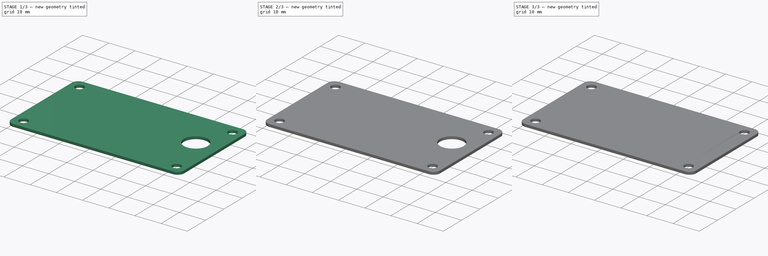
[diagram: build sequence overview — one tinted view per stage of 3, left to right]
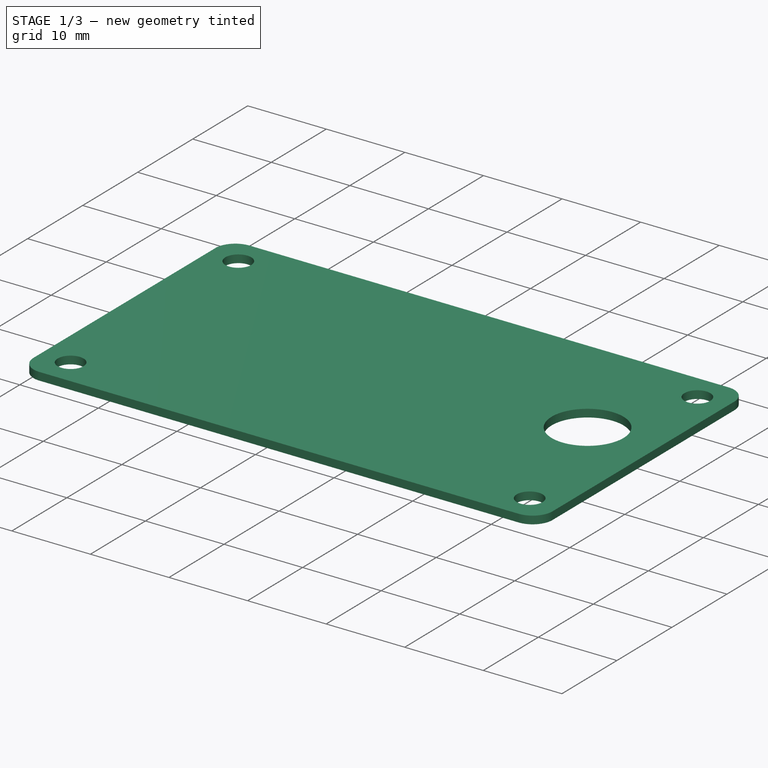
[diagram: stage 1 of 3 — iso view after this stage's code; geometry added in this stage tinted green]
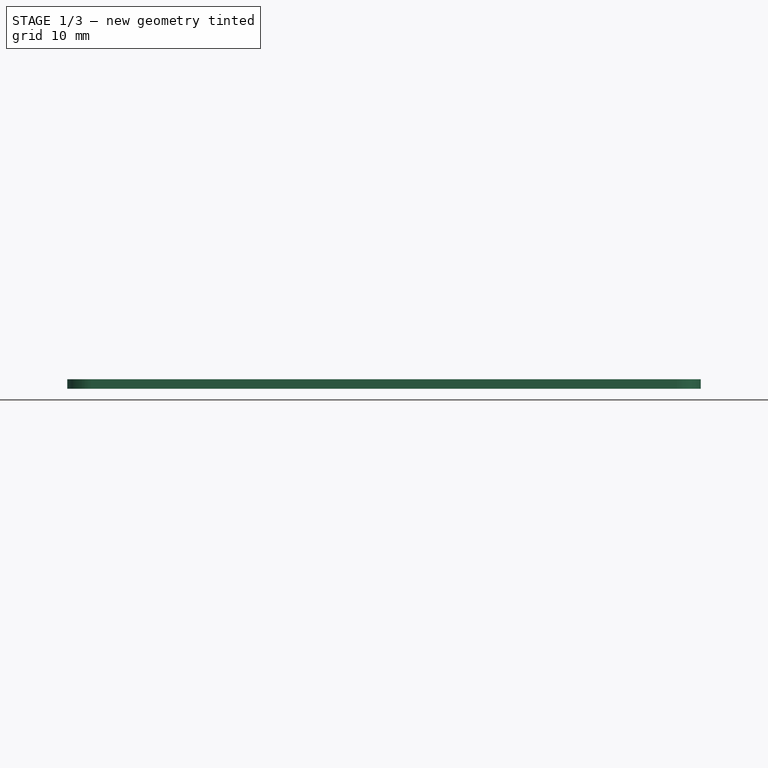
[diagram: stage 1 of 3 — front view after this stage's code; geometry added in this stage tinted green]
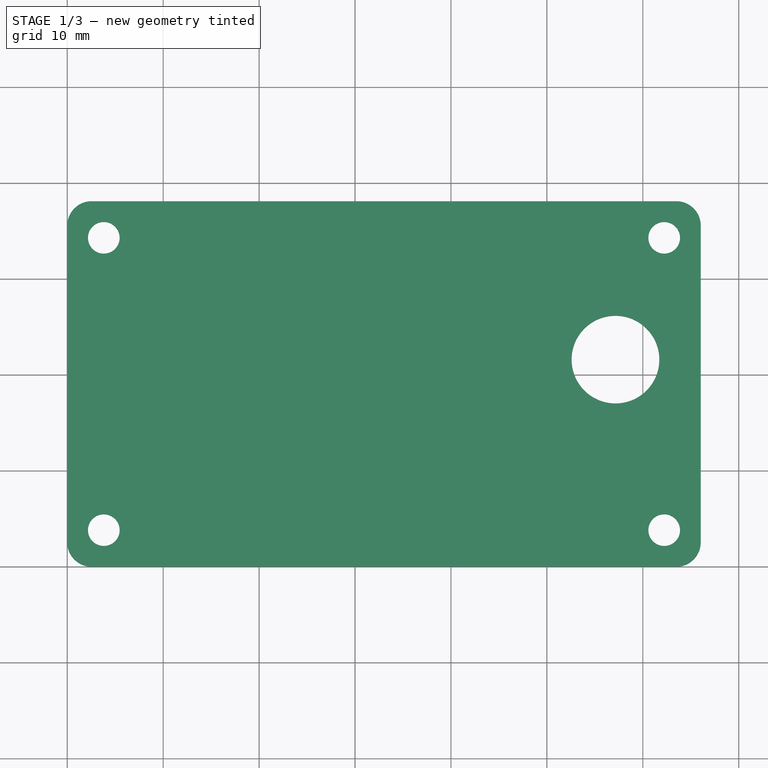
[diagram: stage 1 of 3 — top view after this stage's code; geometry added in this stage tinted green]
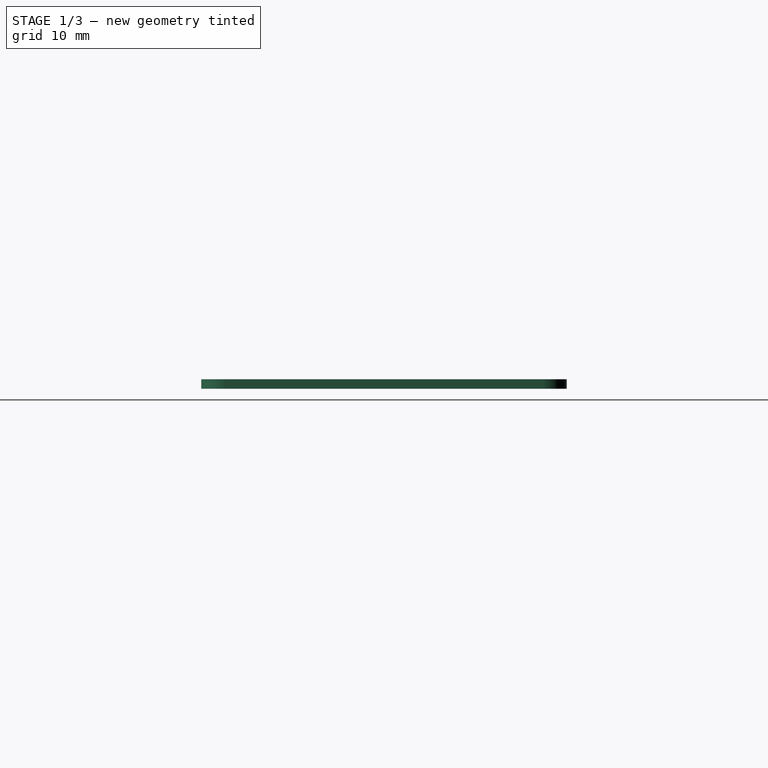
[diagram: stage 1 of 3 — right view after this stage's code; geometry added in this stage tinted green]
FCSTD DOCUMENT  (FreeCAD 0.19R24291 (Git))
Label: Pocket Case
License: All rights reserved
LicenseURL: http://en.wikipedia.org/wiki/All_rights_reserved
objects: Sketcher::SketchObject×8, Part::Extrusion×7
note: 15 computed .brp shape members not serialized (recipe doc carries the construction recipe); baked Part::Feature solids carry a one-line shape summary decoded from their .brp

FEATURE [Part::Extrusion] Extrude005  label="EHole"
  Base = -> Sketch006
  Dir = (0,0,1)
  DirMode = 2
  FaceMakerClass = Part::FaceMakerBullseye
  LengthFwd = 1
  LengthRev = 0
  Solid = true
  Symmetric = false
FEATURE [Part::Extrusion] Extrude006  label="EJoystick"
  Base = -> Sketch007
  Dir = (0,0,1)
  DirMode = 2
  FaceMakerClass = Part::FaceMakerBullseye
  LengthFwd = 1
  LengthRev = 0
  Solid = true
  Symmetric = false
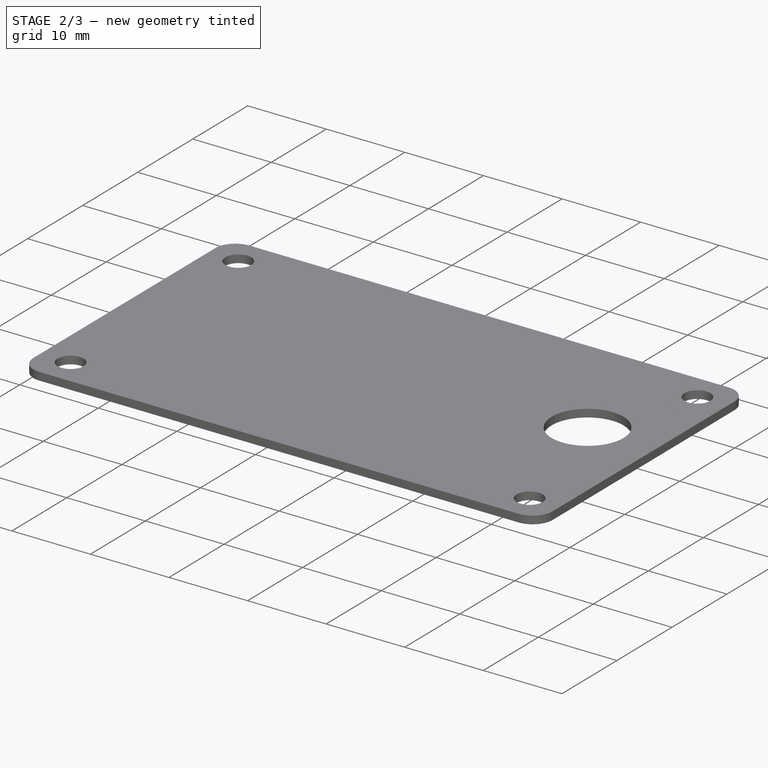
[diagram: stage 2 of 3 — iso view after this stage's code; geometry added in this stage tinted green]
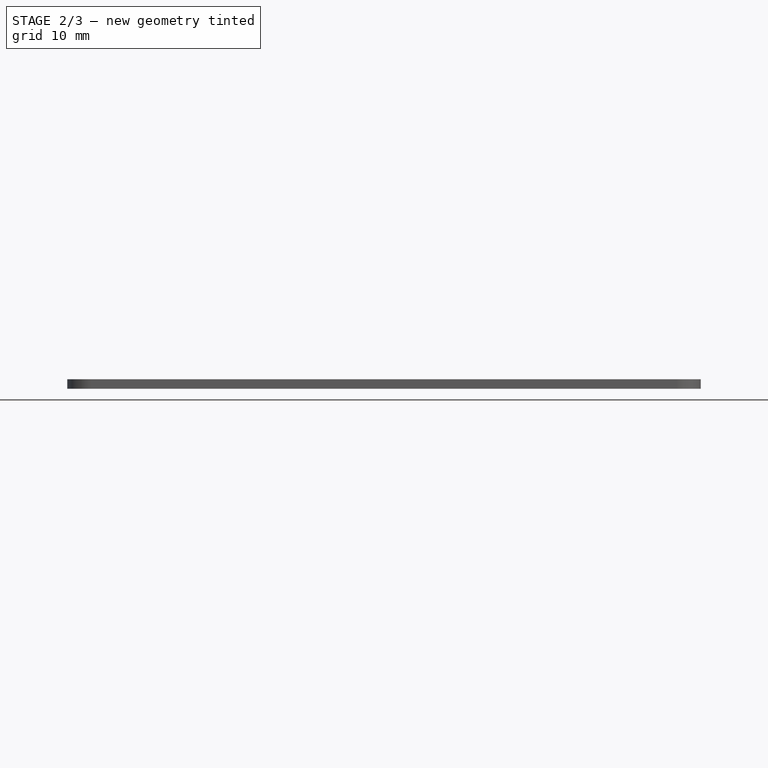
[diagram: stage 2 of 3 — front view after this stage's code; geometry added in this stage tinted green]
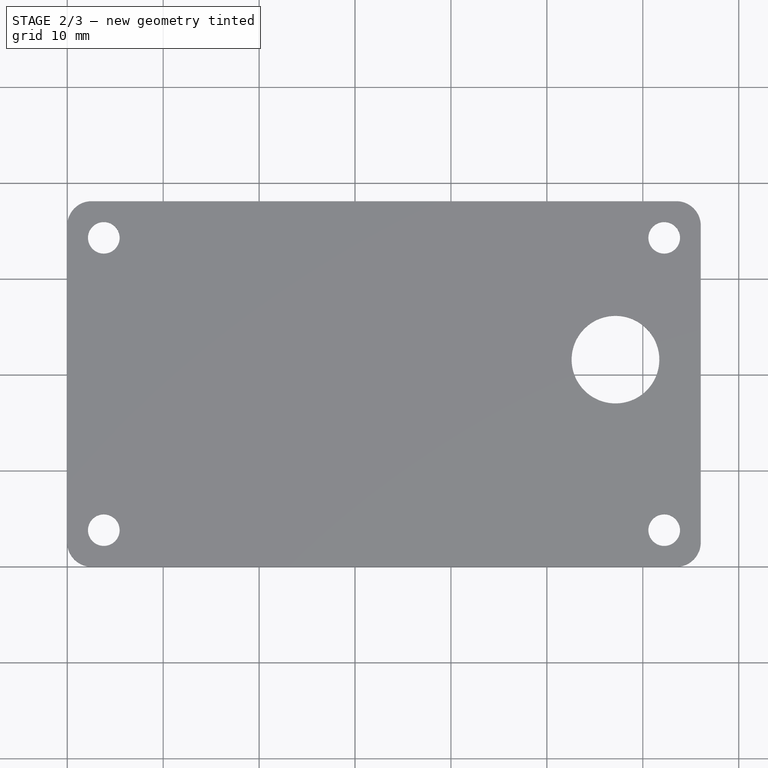
[diagram: stage 2 of 3 — top view after this stage's code; geometry added in this stage tinted green]
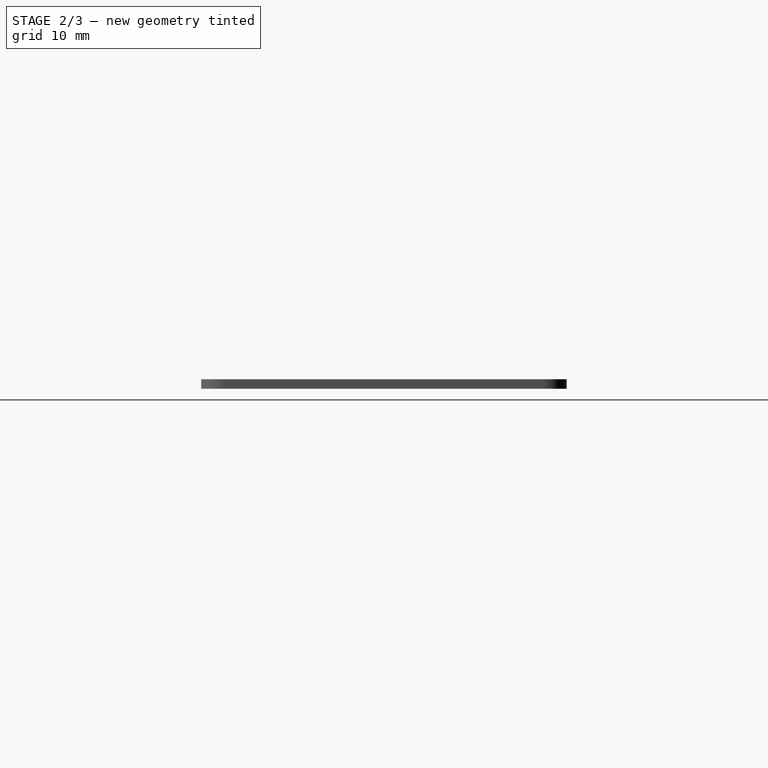
[diagram: stage 2 of 3 — right view after this stage's code; geometry added in this stage tinted green]
FEATURE [Part::Extrusion] Extrude002  label="EHoleUSBPlus"
  Base = -> Sketch003
  Dir = (0,0,1)
  DirMode = 2
  FaceMakerClass = Part::FaceMakerBullseye
  LengthFwd = 1
  LengthRev = 0
  Solid = true
  Symmetric = false
FEATURE [Part::Extrusion] Extrude003  label="ESlot"
  Base = -> Sketch004
  Dir = (0,0,1)
  DirMode = 2
  FaceMakerClass = Part::FaceMakerBullseye
  LengthFwd = 1
  LengthRev = 0
  Solid = true
  Symmetric = false
FEATURE [Part::Extrusion] Extrude004  label="EUSBSlot"
  Base = -> Sketch005
  Dir = (0,0,1)
  DirMode = 2
  FaceMakerClass = Part::FaceMakerBullseye
  LengthFwd = 1
  LengthRev = 0
  Solid = true
  Symmetric = false
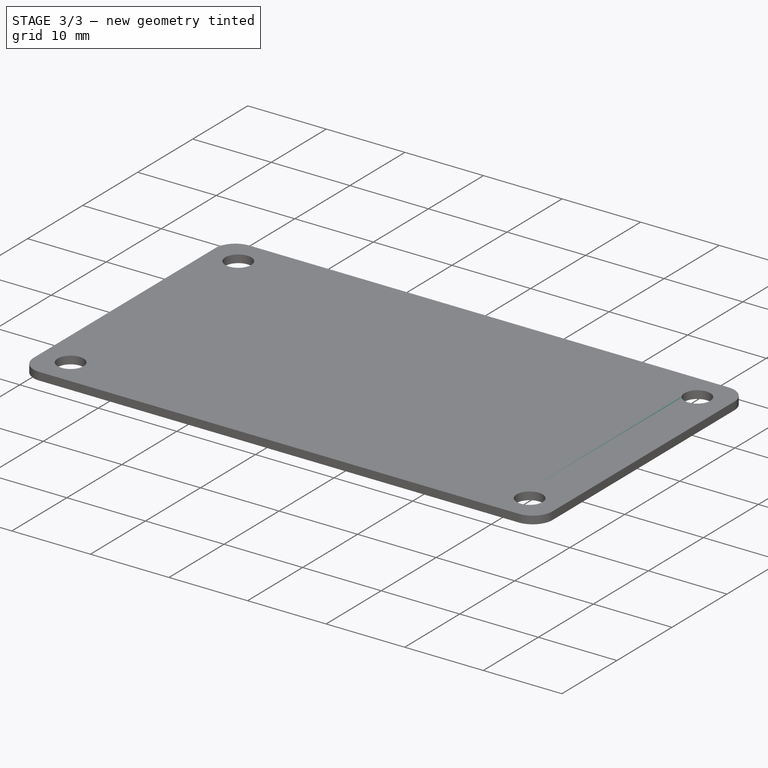
[diagram: stage 3 of 3 — iso view after this stage's code; geometry added in this stage tinted green]
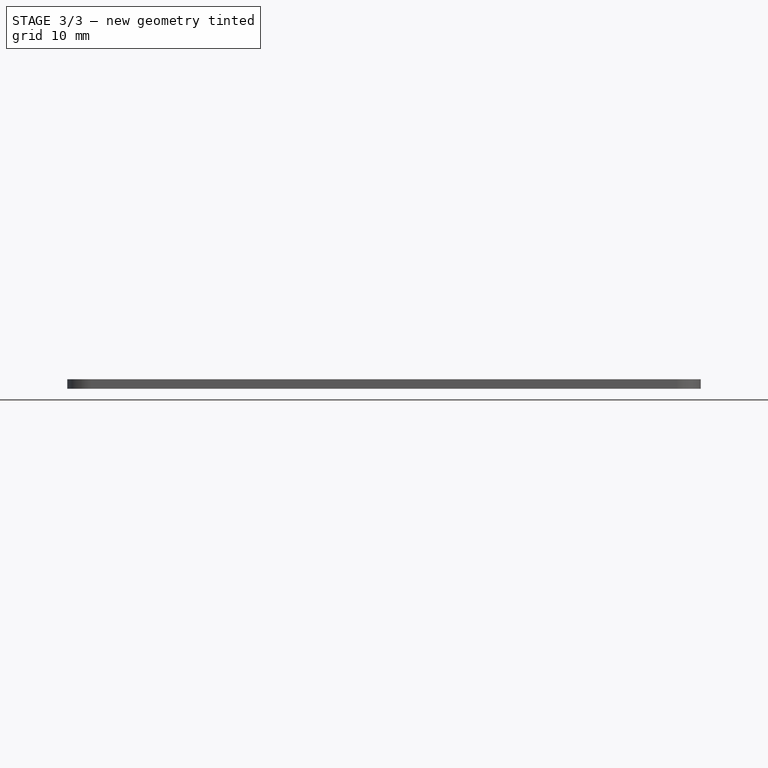
[diagram: stage 3 of 3 — front view after this stage's code; geometry added in this stage tinted green]
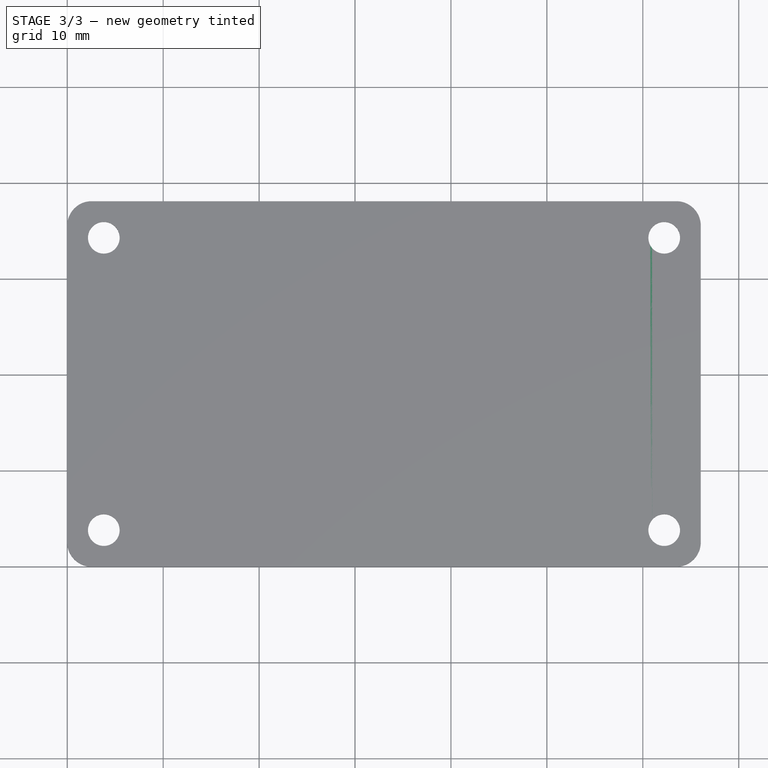
[diagram: stage 3 of 3 — top view after this stage's code; geometry added in this stage tinted green]
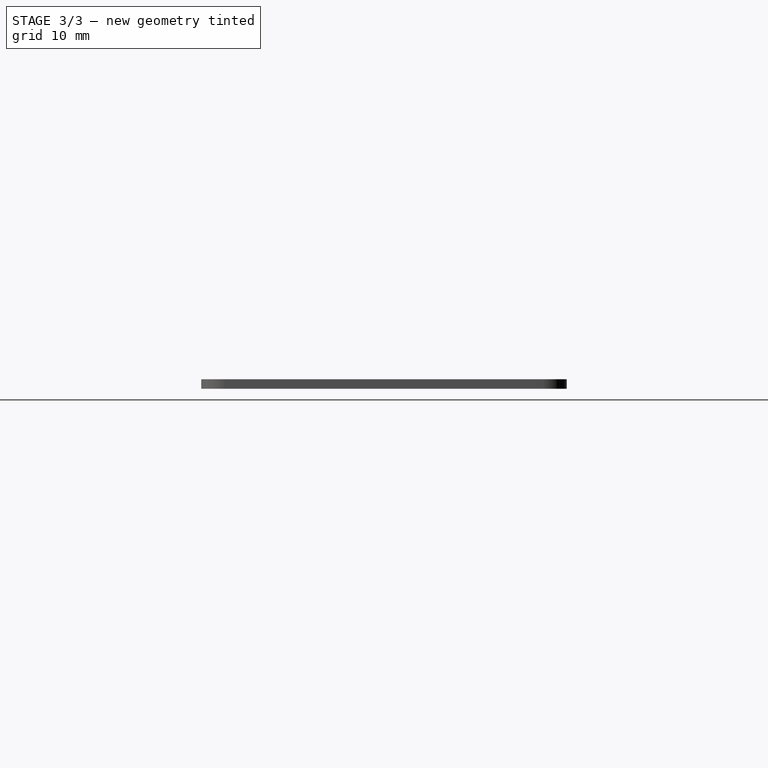
[diagram: stage 3 of 3 — right view after this stage's code; geometry added in this stage tinted green]
FEATURE [Sketcher::SketchObject] Sketch  label="ConstructionLines"
  FullyConstrained = true
  sketch-geometry (26):
    g0: GeomPoint X=66.04 Y=0 Z=0
    g1: GeomPoint X=0 Y=38.1 Z=0
    g2: LineSegment StartX=0 StartY=38.1 StartZ=0 EndX=66.04 EndY=38.1 EndZ=0
    g3: LineSegment StartX=66.04 StartY=38.1 StartZ=0 EndX=66.04 EndY=0 EndZ=0
    g4: GeomPoint X=2.54 Y=0 Z=0
    g5: GeomPoint X=3.81 Y=0 Z=0
    g6: GeomPoint X=7.62 Y=0 Z=0
    g7: GeomPoint X=58.42 Y=0 Z=0
    g8: GeomPoint X=62.23 Y=0 Z=0
    g9: GeomPoint X=63.5 Y=0 Z=0
    g10: GeomPoint X=0 Y=3.81 Z=0
    g11: GeomPoint X=0 Y=10.16 Z=0
    g12: GeomPoint X=0 Y=12.7 Z=0
    g13: GeomPoint X=0 Y=30.48 Z=0
    g14: GeomPoint X=0 Y=34.29 Z=0
    g15: LineSegment StartX=2.54 StartY=0 StartZ=0 EndX=2.54 EndY=38.1 EndZ=0
    g16: LineSegment StartX=3.81 StartY=0 StartZ=0 EndX=3.81 EndY=38.1 EndZ=0
    g17: LineSegment StartX=7.62 StartY=0 StartZ=0 EndX=7.62 EndY=38.1 EndZ=0
    g18: LineSegment StartX=58.42 StartY=0 StartZ=0 EndX=58.42 EndY=38.1 EndZ=0
    g19: LineSegment StartX=62.23 StartY=0 StartZ=0 EndX=62.23 EndY=38.1 EndZ=0
    g20: LineSegment StartX=63.5 StartY=0 StartZ=0 EndX=63.5 EndY=38.1 EndZ=0
    g21: LineSegment StartX=0 StartY=3.81 StartZ=0 EndX=66.04 EndY=3.81 EndZ=0
    g22: LineSegment StartX=0 StartY=10.16 StartZ=0 EndX=66.04 EndY=10.16 EndZ=0
    g23: LineSegment StartX=0 StartY=12.7 StartZ=0 EndX=66.04 EndY=12.7 EndZ=0
    g24: LineSegment StartX=0 StartY=30.48 StartZ=0 EndX=66.04 EndY=30.48 EndZ=0
    g25: LineSegment StartX=0 StartY=34.29 StartZ=0 EndX=66.04 EndY=34.29 EndZ=0
  constraints (64):
    c: PointOnObject(g0,g-1)
    c: PointOnObject(g1,g-2)
    c: Distance(g1,g-1) = 38.1
    c: Distance(g0,g-2) = 66.04
    c: Coincident(g2,g1)
    c: Coincident(g3,g2)
    c: Coincident(g3,g0)
    c: Horizontal(g2)
    c: Vertical(g3)
    c: PointOnObject(g4,g-1)
    c: PointOnObject(g5,g-1)
    c: PointOnObject(g6,g-1)
    c: PointOnObject(g7,g-1)
    c: PointOnObject(g8,g-1)
    c: PointOnObject(g9,g-1)
    c: Distance(g4,g-2) = 2.54
    c: Distance(g5,g-2) = 3.81
    c: Distance(g6,g-2) = 7.62
    c: Distance(g7,g3) = 7.62
    c: Distance(g8,g3) = 3.81
    c: Distance(g9,g3) = 2.54
    c: PointOnObject(g10,g-2)
    c: PointOnObject(g11,g-2)
    c: PointOnObject(g12,g-2)
    c: PointOnObject(g13,g-2)
    c: PointOnObject(g14,g-2)
    c: Distance(g-1,g10) = 3.81
    c: Distance(g11,g12) = 2.54
    c: Distance(g12,g-1) = 12.7
    c: Distance(g13,g12) = 17.78
    c: Distance(g1,g14) = 3.81
    c: Coincident(g15,g4)
    c: PointOnObject(g15,g2)
    c: Vertical(g15)
    c: Coincident(g16,g5)
    c: PointOnObject(g16,g2)
    c: Vertical(g16)
    c: Coincident(g17,g6)
    c: PointOnObject(g17,g2)
    c: Vertical(g17)
    c: Coincident(g18,g7)
    c: PointOnObject(g18,g2)
    c: Vertical(g18)
    c: Coincident(g19,g8)
    c: PointOnObject(g19,g2)
    c: Vertical(g19)
    c: Coincident(g20,g9)
    c: PointOnObject(g20,g2)
    c: Vertical(g20)
    c: Coincident(g21,g10)
    c: PointOnObject(g21,g3)
    c: Horizontal(g21)
    c: Coincident(g22,g11)
    c: PointOnObject(g22,g3)
    c: Horizontal(g22)
    c: Coincident(g23,g12)
    c: PointOnObject(g23,g3)
    c: Horizontal(g23)
    c: Coincident(g24,g13)
    c: PointOnObject(g24,g3)
    c: Horizontal(g24)
    c: Coincident(g25,g14)
    c: PointOnObject(g25,g3)
    c: Horizontal(g25)
FEATURE [Sketcher::SketchObject] Sketch001  label="Plate"
  FullyConstrained = true
  sketch-geometry (38):
    g0: GeomPoint X=66.04 Y=0 Z=0
    g1: GeomPoint X=0 Y=38.1 Z=0
    g2: LineSegment StartX=0 StartY=38.1 StartZ=0 EndX=66.04 EndY=38.1 EndZ=0
    g3: LineSegment StartX=66.04 StartY=38.1 StartZ=0 EndX=66.04 EndY=0 EndZ=0
    g4: GeomPoint X=2.54 Y=0 Z=0
    g5: GeomPoint X=3.81 Y=0 Z=0
    g6: GeomPoint X=7.62 Y=0 Z=0
    g7: GeomPoint X=58.42 Y=0 Z=0
    g8: GeomPoint X=62.23 Y=0 Z=0
    g9: GeomPoint X=63.5 Y=0 Z=0
    g10: GeomPoint X=0 Y=3.81 Z=0
    g11: GeomPoint X=0 Y=10.16 Z=0
    g12: GeomPoint X=0 Y=12.7 Z=0
    g13: GeomPoint X=0 Y=30.48 Z=0
    g14: GeomPoint X=0 Y=34.29 Z=0
    g15: LineSegment StartX=2.54 StartY=0 StartZ=0 EndX=2.54 EndY=38.1 EndZ=0
    g16: LineSegment StartX=3.81 StartY=0 StartZ=0 EndX=3.81 EndY=38.1 EndZ=0
    g17: LineSegment StartX=7.62 StartY=0 StartZ=0 EndX=7.62 EndY=38.1 EndZ=0
    g18: LineSegment StartX=58.42 StartY=0 StartZ=0 EndX=58.42 EndY=38.1 EndZ=0
    g19: LineSegment StartX=62.23 StartY=0 StartZ=0 EndX=62.23 EndY=38.1 EndZ=0
    g20: LineSegment StartX=63.5 StartY=0 StartZ=0 EndX=63.5 EndY=38.1 EndZ=0
    g21: LineSegment StartX=0 StartY=3.81 StartZ=0 EndX=66.04 EndY=3.81 EndZ=0
    g22: LineSegment StartX=0 StartY=10.16 StartZ=0 EndX=66.04 EndY=10.16 EndZ=0
    g23: LineSegment StartX=0 StartY=12.7 StartZ=0 EndX=66.04 EndY=12.7 EndZ=0
    g24: LineSegment StartX=0 StartY=30.48 StartZ=0 EndX=66.04 EndY=30.48 EndZ=0
    g25: LineSegment StartX=0 StartY=34.29 StartZ=0 EndX=66.04 EndY=34.29 EndZ=0
    g26: ArcOfCircle CenterX=2.54 CenterY=2.54 CenterZ=0 NormalX=0 NormalY=0 NormalZ=1 AngleXU=0 Radius=2.54 StartAngle=3.14159 EndAngle=4.71239
    g27: ArcOfCircle CenterX=2.54 CenterY=35.56 CenterZ=0 NormalX=0 NormalY=0 NormalZ=1 AngleXU=0 Radius=2.54 StartAngle=1.5708 EndAngle=3.14159
    g28: ArcOfCircle CenterX=63.5 CenterY=35.56 CenterZ=0 NormalX=0 NormalY=0 NormalZ=1 AngleXU=0 Radius=2.54 StartAngle=3.09233e-08 EndAngle=1.5708
    g29: ArcOfCircle CenterX=63.5 CenterY=2.54 CenterZ=0 NormalX=0 NormalY=0 NormalZ=1 AngleXU=0 Radius=2.54 StartAngle=4.71239 EndAngle=6.28319
    g30: LineSegment StartX=2.54 StartY=38.1 StartZ=0 EndX=63.5 EndY=38.1 EndZ=0
    g31: LineSegment StartX=66.04 StartY=35.56 StartZ=0 EndX=66.04 EndY=2.54 EndZ=0
    g32: LineSegment StartX=63.5 StartY=0 StartZ=0 EndX=2.54 EndY=0 EndZ=0
    g33: LineSegment StartX=0 StartY=2.54 StartZ=0 EndX=0 EndY=35.56 EndZ=0
    g34: Circle CenterX=3.81 CenterY=34.29 CenterZ=0 NormalX=0 NormalY=0 NormalZ=1 AngleXU=0 Radius=1.651
    g35: Circle CenterX=3.81 CenterY=3.81 CenterZ=0 NormalX=0 NormalY=0 NormalZ=1 AngleXU=0 Radius=1.651
    g36: Circle CenterX=62.23 CenterY=3.81 CenterZ=0 NormalX=0 NormalY=0 NormalZ=1 AngleXU=0 Radius=1.651
    g37: Circle CenterX=62.23 CenterY=34.29 CenterZ=0 NormalX=0 NormalY=0 NormalZ=1 AngleXU=0 Radius=1.651
  constraints (100):
    c: PointOnObject(g0,g-1)
    c: PointOnObject(g1,g-2)
    c: Distance(g1,g-1) = 38.1
    c: Distance(g0,g-2) = 66.04
    c: Coincident(g2,g1)
    c: Coincident(g3,g2)
    c: Coincident(g3,g0)
    c: Horizontal(g2)
    c: Vertical(g3)
    c: PointOnObject(g4,g-1)
    c: PointOnObject(g5,g-1)
    c: PointOnObject(g6,g-1)
    c: PointOnObject(g7,g-1)
    c: PointOnObject(g8,g-1)
    c: PointOnObject(g9,g-1)
    c: Distance(g4,g-2) = 2.54
    c: Distance(g5,g-2) = 3.81
    c: Distance(g6,g-2) = 7.62
    c: Distance(g7,g3) = 7.62
    c: Distance(g8,g3) = 3.81
    c: Distance(g9,g3) = 2.54
    c: PointOnObject(g10,g-2)
    c: PointOnObject(g11,g-2)
    c: PointOnObject(g12,g-2)
    c: PointOnObject(g13,g-2)
    c: PointOnObject(g14,g-2)
    c: Distance(g-1,g10) = 3.81
    c: Distance(g11,g12) = 2.54
    c: Distance(g12,g-1) = 12.7
    c: Distance(g13,g12) = 17.78
    c: Distance(g1,g14) = 3.81
    c: Coincident(g15,g4)
    c: PointOnObject(g15,g2)
    c: Vertical(g15)
    c: Coincident(g16,g5)
    c: PointOnObject(g16,g2)
    c: Vertical(g16)
    c: Coincident(g17,g6)
    c: PointOnObject(g17,g2)
    c: Vertical(g17)
    c: Coincident(g18,g7)
    c: PointOnObject(g18,g2)
    c: Vertical(g18)
    c: Coincident(g19,g8)
    c: PointOnObject(g19,g2)
    c: Vertical(g19)
    c: Coincident(g20,g9)
    c: PointOnObject(g20,g2)
    c: Vertical(g20)
    c: Coincident(g21,g10)
    c: PointOnObject(g21,g3)
    c: Horizontal(g21)
    c: Coincident(g22,g11)
    c: PointOnObject(g22,g3)
    c: Horizontal(g22)
    c: Coincident(g23,g12)
    c: PointOnObject(g23,g3)
    c: Horizontal(g23)
    c: Coincident(g24,g13)
    c: PointOnObject(g24,g3)
    c: Horizontal(g24)
    c: Coincident(g25,g14)
    c: PointOnObject(g25,g3)
    c: Horizontal(g25)
    c: PointOnObject(g26,g15)
    c: Coincident(g26,g4)
    c: PointOnObject(g26,g-2)
    c: Tangent(g26,g-2)
    c: PointOnObject(g27,g15)
    c: Coincident(g27,g15)
    c: PointOnObject(g27,g-2)
    c: Tangent(g27,g-2)
    c: PointOnObject(g28,g20)
    c: Coincident(g28,g20)
    c: PointOnObject(g28,g3)
    c: Tangent(g28,g3)
    c: PointOnObject(g29,g20)
    c: Coincident(g29,g9)
    c: PointOnObject(g29,g3)
    c: Tangent(g3,g29)
    c: Coincident(g30,g27)
    c: Coincident(g30,g28)
    c: Coincident(g31,g28)
    c: Coincident(g31,g29)
    c: Coincident(g32,g29)
    c: Coincident(g32,g26)
    c: Coincident(g33,g26)
    c: Coincident(g33,g27)
    c: PointOnObject(g34,g16)
    c: Radius(g34) = 1.651
    c: PointOnObject(g34,g25)
    c: PointOnObject(g35,g16)
    c: PointOnObject(g36,g19)
    c: PointOnObject(g37,g19)
    c: Equal(g34,g35)
    c: Equal(g34,g36)
    c: Equal(g34,g37)
    c: PointOnObject(g37,g25)
    c: PointOnObject(g36,g21)
    c: PointOnObject(g35,g21)
FEATURE [Sketcher::SketchObject] Sketch002  label="ThroughHoleSlots"
  FullyConstrained = true
  sketch-geometry (46):
    g0: GeomPoint X=66.04 Y=0 Z=0
    g1: GeomPoint X=0 Y=38.1 Z=0
    g2: LineSegment StartX=0 StartY=38.1 StartZ=0 EndX=66.04 EndY=38.1 EndZ=0
    g3: LineSegment StartX=66.04 StartY=38.1 StartZ=0 EndX=66.04 EndY=0 EndZ=0
    g4: GeomPoint X=2.54 Y=0 Z=0
    g5: GeomPoint X=3.81 Y=0 Z=0
    g6: GeomPoint X=7.62 Y=0 Z=0
    g7: GeomPoint X=58.42 Y=0 Z=0
    g8: GeomPoint X=62.23 Y=0 Z=0
    g9: GeomPoint X=63.5 Y=0 Z=0
    g10: GeomPoint X=0 Y=3.81 Z=0
    g11: GeomPoint X=0 Y=10.16 Z=0
    g12: GeomPoint X=0 Y=12.7 Z=0
    g13: GeomPoint X=0 Y=30.48 Z=0
    g14: GeomPoint X=0 Y=34.29 Z=0
    g15: LineSegment StartX=2.54 StartY=0 StartZ=0 EndX=2.54 EndY=38.1 EndZ=0
    g16: LineSegment StartX=3.81 StartY=0 StartZ=0 EndX=3.81 EndY=38.1 EndZ=0
    g17: LineSegment StartX=7.62 StartY=0 StartZ=0 EndX=7.62 EndY=38.1 EndZ=0
    g18: LineSegment StartX=58.42 StartY=0 StartZ=0 EndX=58.42 EndY=38.1 EndZ=0
    g19: LineSegment StartX=62.23 StartY=0 StartZ=0 EndX=62.23 EndY=38.1 EndZ=0
    g20: LineSegment StartX=63.5 StartY=0 StartZ=0 EndX=63.5 EndY=38.1 EndZ=0
    g21: LineSegment StartX=0 StartY=3.81 StartZ=0 EndX=66.04 EndY=3.81 EndZ=0
    g22: LineSegment StartX=0 StartY=10.16 StartZ=0 EndX=66.04 EndY=10.16 EndZ=0
    g23: LineSegment StartX=0 StartY=12.7 StartZ=0 EndX=66.04 EndY=12.7 EndZ=0
    g24: LineSegment StartX=0 StartY=30.48 StartZ=0 EndX=66.04 EndY=30.48 EndZ=0
    g25: LineSegment StartX=0 StartY=34.29 StartZ=0 EndX=66.04 EndY=34.29 EndZ=0
    g26: ArcOfCircle CenterX=2.54 CenterY=2.54 CenterZ=0 NormalX=0 NormalY=0 NormalZ=1 AngleXU=0 Radius=2.54 StartAngle=3.14159 EndAngle=4.71239
    g27: ArcOfCircle CenterX=2.54 CenterY=35.56 CenterZ=0 NormalX=0 NormalY=0 NormalZ=1 AngleXU=0 Radius=2.54 StartAngle=1.5708 EndAngle=3.14159
    g28: ArcOfCircle CenterX=63.5 CenterY=35.56 CenterZ=0 NormalX=0 NormalY=0 NormalZ=1 AngleXU=0 Radius=2.54 StartAngle=9.22888e-07 EndAngle=1.5708
    g29: ArcOfCircle CenterX=63.5 CenterY=2.54 CenterZ=0 NormalX=0 NormalY=0 NormalZ=1 AngleXU=0 Radius=2.54 StartAngle=4.71239 EndAngle=6.28319
    g30: LineSegment StartX=2.54 StartY=38.1 StartZ=0 EndX=63.5 EndY=38.1 EndZ=0
    g31: LineSegment StartX=66.04 StartY=35.56 StartZ=0 EndX=66.04 EndY=2.54 EndZ=0
    g32: LineSegment StartX=63.5 StartY=0 StartZ=0 EndX=2.54 EndY=0 EndZ=0
    g33: LineSegment StartX=0 StartY=2.54 StartZ=0 EndX=0 EndY=35.56 EndZ=0
    g34: Circle CenterX=3.81 CenterY=34.29 CenterZ=0 NormalX=0 NormalY=0 NormalZ=1 AngleXU=0 Radius=1.651
    g35: Circle CenterX=3.81 CenterY=3.81 CenterZ=0 NormalX=0 NormalY=0 NormalZ=1 AngleXU=0 Radius=1.651
    g36: Circle CenterX=62.23 CenterY=3.81 CenterZ=0 NormalX=0 NormalY=0 NormalZ=1 AngleXU=0 Radius=1.651
    g37: Circle CenterX=62.23 CenterY=34.29 CenterZ=0 NormalX=0 NormalY=0 NormalZ=1 AngleXU=0 Radius=1.651
    g38: LineSegment StartX=2.54 StartY=12.7 StartZ=0 EndX=63.5 EndY=12.7 EndZ=0
    g39: LineSegment StartX=63.5 StartY=12.7 StartZ=0 EndX=63.5 EndY=15.24 EndZ=0
    g40: LineSegment StartX=63.5 StartY=15.24 StartZ=0 EndX=2.54 EndY=15.24 EndZ=0
    g41: LineSegment StartX=2.54 StartY=15.24 StartZ=0 EndX=2.54 EndY=12.7 EndZ=0
    g42: LineSegment StartX=2.54 StartY=30.48 StartZ=0 EndX=63.5 EndY=30.48 EndZ=0
    g43: LineSegment StartX=63.5 StartY=30.48 StartZ=0 EndX=63.5 EndY=27.94 EndZ=0
    g44: LineSegment StartX=63.5 StartY=27.94 StartZ=0 EndX=2.54 EndY=27.94 EndZ=0
    g45: LineSegment StartX=2.54 StartY=27.94 StartZ=0 EndX=2.54 EndY=30.48 EndZ=0
  constraints (124):
    c: PointOnObject(g0,g-1)
    c: PointOnObject(g1,g-2)
    c: Distance(g1,g-1) = 38.1
    c: Distance(g0,g-2) = 66.04
    c: Coincident(g2,g1)
    c: Coincident(g3,g2)
    c: Coincident(g3,g0)
    c: Horizontal(g2)
    c: Vertical(g3)
    c: PointOnObject(g4,g-1)
    c: PointOnObject(g5,g-1)
    c: PointOnObject(g6,g-1)
    c: PointOnObject(g7,g-1)
    c: PointOnObject(g8,g-1)
    c: PointOnObject(g9,g-1)
    c: Distance(g4,g-2) = 2.54
    c: Distance(g5,g-2) = 3.81
    c: Distance(g6,g-2) = 7.62
    c: Distance(g7,g3) = 7.62
    c: Distance(g8,g3) = 3.81
    c: Distance(g9,g3) = 2.54
    c: PointOnObject(g10,g-2)
    c: PointOnObject(g11,g-2)
    c: PointOnObject(g12,g-2)
    c: PointOnObject(g13,g-2)
    c: PointOnObject(g14,g-2)
    c: Distance(g-1,g10) = 3.81
    c: Distance(g11,g12) = 2.54
    c: Distance(g12,g-1) = 12.7
    c: Distance(g13,g12) = 17.78
    c: Distance(g1,g14) = 3.81
    c: Coincident(g15,g4)
    c: PointOnObject(g15,g2)
    c: Vertical(g15)
    c: Coincident(g16,g5)
    c: PointOnObject(g16,g2)
    c: Vertical(g16)
    c: Coincident(g17,g6)
    c: PointOnObject(g17,g2)
    c: Vertical(g17)
    c: Coincident(g18,g7)
    c: PointOnObject(g18,g2)
    c: Vertical(g18)
    c: Coincident(g19,g8)
    c: PointOnObject(g19,g2)
    c: Vertical(g19)
    c: Coincident(g20,g9)
    c: PointOnObject(g20,g2)
    c: Vertical(g20)
    c: Coincident(g21,g10)
    c: PointOnObject(g21,g3)
    c: Horizontal(g21)
    c: Coincident(g22,g11)
    c: PointOnObject(g22,g3)
    c: Horizontal(g22)
    c: Coincident(g23,g12)
    c: PointOnObject(g23,g3)
    c: Horizontal(g23)
    c: Coincident(g24,g13)
    c: PointOnObject(g24,g3)
    c: Horizontal(g24)
    c: Coincident(g25,g14)
    c: PointOnObject(g25,g3)
    c: Horizontal(g25)
    c: PointOnObject(g26,g15)
    c: Coincident(g26,g4)
    c: PointOnObject(g26,g-2)
    c: Tangent(g26,g-2)
    c: PointOnObject(g27,g15)
    c: Coincident(g27,g15)
    c: PointOnObject(g27,g-2)
    c: Tangent(g27,g-2)
    c: PointOnObject(g28,g20)
    c: Coincident(g28,g20)
    c: PointOnObject(g28,g3)
    c: Tangent(g28,g3)
    c: PointOnObject(g29,g20)
    c: Coincident(g29,g9)
    c: PointOnObject(g29,g3)
    c: Tangent(g3,g29)
    c: Coincident(g30,g27)
    c: Coincident(g30,g28)
    c: Coincident(g31,g28)
    c: Coincident(g31,g29)
    c: Coincident(g32,g29)
    c: Coincident(g32,g26)
    c: Coincident(g33,g26)
    c: Coincident(g33,g27)
    c: PointOnObject(g34,g16)
    c: Radius(g34) = 1.651
    c: PointOnObject(g34,g25)
    c: PointOnObject(g35,g16)
    c: PointOnObject(g36,g19)
    c: PointOnObject(g37,g19)
    c: Equal(g34,g35)
    c: Equal(g34,g36)
    c: Equal(g34,g37)
    c: PointOnObject(g37,g25)
    c: PointOnObject(g36,g21)
    c: PointOnObject(g35,g21)
    c: Coincident(g38,g39)
    c: Coincident(g39,g40)
    c: Coincident(g40,g41)
    c: Coincident(g41,g38)
    c: Horizontal(g38)
    c: Horizontal(g40)
    c: Vertical(g39)
    c: Vertical(g41)
    c: PointOnObject(g38,g15)
    c: PointOnObject(g39,g20)
    c: PointOnObject(g38,g23)
    c: DistanceY(g39,g39) = 2.54
    c: Coincident(g42,g43)
    c: Coincident(g43,g44)
    c: Coincident(g44,g45)
    c: Coincident(g45,g42)
    c: Horizontal(g42)
    c: Horizontal(g44)
    c: Vertical(g43)
    c: Vertical(g45)
    c: PointOnObject(g42,g15)
    c: PointOnObject(g43,g20)
    c: Equal(g45,g41)
    c: PointOnObject(g42,g24)
FEATURE [Sketcher::SketchObject] Sketch003  label="HoleUSBPlus"
  FullyConstrained = true
  sketch-geometry (46):
    g0: GeomPoint X=66.04 Y=0 Z=0
    g1: GeomPoint X=0 Y=38.1 Z=0
    g2: LineSegment StartX=0 StartY=38.1 StartZ=0 EndX=66.04 EndY=38.1 EndZ=0
    g3: LineSegment StartX=66.04 StartY=38.1 StartZ=0 EndX=66.04 EndY=0 EndZ=0
    g4: GeomPoint X=2.54 Y=0 Z=0
    g5: GeomPoint X=3.81 Y=0 Z=0
    g6: GeomPoint X=7.62 Y=0 Z=0
    g7: GeomPoint X=58.42 Y=0 Z=0
    g8: GeomPoint X=62.23 Y=0 Z=0
    g9: GeomPoint X=63.5 Y=0 Z=0
    g10: GeomPoint X=0 Y=3.81 Z=0
    g11: GeomPoint X=0 Y=10.16 Z=0
    g12: GeomPoint X=0 Y=12.7 Z=0
    g13: GeomPoint X=0 Y=30.48 Z=0
    g14: GeomPoint X=0 Y=34.29 Z=0
    g15: LineSegment StartX=2.54 StartY=0 StartZ=0 EndX=2.54 EndY=38.1 EndZ=0
    g16: LineSegment StartX=3.81 StartY=0 StartZ=0 EndX=3.81 EndY=38.1 EndZ=0
    g17: LineSegment StartX=7.62 StartY=0 StartZ=0 EndX=7.62 EndY=38.1 EndZ=0
    g18: LineSegment StartX=58.42 StartY=0 StartZ=0 EndX=58.42 EndY=38.1 EndZ=0
    g19: LineSegment StartX=62.23 StartY=0 StartZ=0 EndX=62.23 EndY=38.1 EndZ=0
    g20: LineSegment StartX=63.5 StartY=0 StartZ=0 EndX=63.5 EndY=38.1 EndZ=0
    g21: LineSegment StartX=0 StartY=3.81 StartZ=0 EndX=66.04 EndY=3.81 EndZ=0
    g22: LineSegment StartX=0 StartY=10.16 StartZ=0 EndX=66.04 EndY=10.16 EndZ=0
    g23: LineSegment StartX=0 StartY=12.7 StartZ=0 EndX=66.04 EndY=12.7 EndZ=0
    g24: LineSegment StartX=0 StartY=30.48 StartZ=0 EndX=66.04 EndY=30.48 EndZ=0
    g25: LineSegment StartX=0 StartY=34.29 StartZ=0 EndX=66.04 EndY=34.29 EndZ=0
    g26: ArcOfCircle CenterX=2.54 CenterY=2.54 CenterZ=0 NormalX=0 NormalY=0 NormalZ=1 AngleXU=0 Radius=2.54 StartAngle=3.14159 EndAngle=4.71239
    g27: ArcOfCircle CenterX=2.54 CenterY=35.56 CenterZ=0 NormalX=0 NormalY=0 NormalZ=1 AngleXU=0 Radius=2.54 StartAngle=1.5708 EndAngle=3.14159
    g28: ArcOfCircle CenterX=63.5 CenterY=35.56 CenterZ=0 NormalX=0 NormalY=0 NormalZ=1 AngleXU=0 Radius=2.54 StartAngle=5.41814e-08 EndAngle=1.5708
    g29: ArcOfCircle CenterX=63.5 CenterY=2.54 CenterZ=0 NormalX=0 NormalY=0 NormalZ=1 AngleXU=0 Radius=2.54 StartAngle=4.71239 EndAngle=6.28319
    g30: LineSegment StartX=2.54 StartY=38.1 StartZ=0 EndX=63.5 EndY=38.1 EndZ=0
    g31: LineSegment StartX=66.04 StartY=35.56 StartZ=0 EndX=66.04 EndY=2.54 EndZ=0
    g32: LineSegment StartX=0 StartY=2.54 StartZ=0 EndX=0 EndY=35.56 EndZ=0
    g33: Circle CenterX=3.81 CenterY=34.29 CenterZ=0 NormalX=0 NormalY=0 NormalZ=1 AngleXU=0 Radius=1.651
    g34: Circle CenterX=3.81 CenterY=3.81 CenterZ=0 NormalX=0 NormalY=0 NormalZ=1 AngleXU=0 Radius=1.651
    g35: Circle CenterX=62.23 CenterY=3.81 CenterZ=0 NormalX=0 NormalY=0 NormalZ=1 AngleXU=0 Radius=1.651
    g36: Circle CenterX=62.23 CenterY=34.29 CenterZ=0 NormalX=0 NormalY=0 NormalZ=1 AngleXU=0 Radius=1.651
    g37: LineSegment StartX=2.54 StartY=30.48 StartZ=0 EndX=63.5 EndY=30.48 EndZ=0
    g38: LineSegment StartX=63.5 StartY=30.48 StartZ=0 EndX=63.5 EndY=12.7 EndZ=0
    g39: LineSegment StartX=63.5 StartY=12.7 StartZ=0 EndX=2.54 EndY=12.7 EndZ=0
    g40: LineSegment StartX=2.54 StartY=12.7 StartZ=0 EndX=2.54 EndY=30.48 EndZ=0
    g41: LineSegment StartX=2.54 StartY=0 StartZ=0 EndX=7.62 EndY=0 EndZ=0
    g42: LineSegment StartX=7.62 StartY=0 StartZ=0 EndX=7.62 EndY=10.16 EndZ=0
    g43: LineSegment StartX=7.62 StartY=10.16 StartZ=0 EndX=58.42 EndY=10.16 EndZ=0
    g44: LineSegment StartX=58.42 StartY=10.16 StartZ=0 EndX=58.42 EndY=0 EndZ=0
    g45: LineSegment StartX=58.42 StartY=0 StartZ=0 EndX=63.5 EndY=0 EndZ=0
  constraints (122):
    c: PointOnObject(g0,g-1)
    c: PointOnObject(g1,g-2)
    c: Distance(g1,g-1) = 38.1
    c: Distance(g0,g-2) = 66.04
    c: Coincident(g2,g1)
    c: Coincident(g3,g2)
    c: Coincident(g3,g0)
    c: Horizontal(g2)
    c: Vertical(g3)
    c: PointOnObject(g4,g-1)
    c: PointOnObject(g5,g-1)
    c: PointOnObject(g7,g-1)
    c: PointOnObject(g8,g-1)
    c: PointOnObject(g9,g-1)
    c: Distance(g4,g-2) = 2.54
    c: Distance(g5,g-2) = 3.81
    c: Distance(g6,g-2) = 7.62
    c: Distance(g7,g3) = 7.62
    c: Distance(g8,g3) = 3.81
    c: Distance(g9,g3) = 2.54
    c: PointOnObject(g10,g-2)
    c: PointOnObject(g11,g-2)
    c: PointOnObject(g12,g-2)
    c: PointOnObject(g13,g-2)
    c: PointOnObject(g14,g-2)
    c: Distance(g-1,g10) = 3.81
    c: Distance(g11,g12) = 2.54
    c: Distance(g12,g-1) = 12.7
    c: Distance(g13,g12) = 17.78
    c: Distance(g1,g14) = 3.81
    c: Coincident(g15,g4)
    c: PointOnObject(g15,g2)
    c: Vertical(g15)
    c: Coincident(g16,g5)
    c: PointOnObject(g16,g2)
    c: Vertical(g16)
    c: Coincident(g17,g6)
    c: PointOnObject(g17,g2)
    c: Vertical(g17)
    c: Coincident(g18,g7)
    c: PointOnObject(g18,g2)
    c: Vertical(g18)
    c: Coincident(g19,g8)
    c: PointOnObject(g19,g2)
    c: Vertical(g19)
    c: Coincident(g20,g9)
    c: PointOnObject(g20,g2)
    c: Vertical(g20)
    c: Coincident(g21,g10)
    c: PointOnObject(g21,g3)
    c: Horizontal(g21)
    c: Coincident(g22,g11)
    c: PointOnObject(g22,g3)
    c: Horizontal(g22)
    c: Coincident(g23,g12)
    c: PointOnObject(g23,g3)
    c: Horizontal(g23)
    c: Coincident(g24,g13)
    c: PointOnObject(g24,g3)
    c: Horizontal(g24)
    c: Coincident(g25,g14)
    c: PointOnObject(g25,g3)
    c: Horizontal(g25)
    c: PointOnObject(g26,g15)
    c: Coincident(g26,g4)
    c: PointOnObject(g26,g-2)
    c: Tangent(g26,g-2)
    c: PointOnObject(g27,g15)
    c: Coincident(g27,g15)
    c: PointOnObject(g27,g-2)
    c: Tangent(g27,g-2)
    c: PointOnObject(g28,g20)
    c: Coincident(g28,g20)
    c: PointOnObject(g28,g3)
    c: Tangent(g28,g3)
    c: PointOnObject(g29,g20)
    c: Coincident(g29,g9)
    c: PointOnObject(g29,g3)
    c: Tangent(g3,g29)
    c: Coincident(g30,g27)
    c: Coincident(g30,g28)
    c: Coincident(g31,g28)
    c: Coincident(g31,g29)
    c: Coincident(g32,g26)
    c: Coincident(g32,g27)
    c: PointOnObject(g33,g16)
    c: Radius(g33) = 1.651
    c: PointOnObject(g33,g25)
    c: PointOnObject(g34,g16)
    c: PointOnObject(g35,g19)
    c: PointOnObject(g36,g19)
    c: Equal(g33,g34)
    c: Equal(g33,g35)
    c: Equal(g33,g36)
    c: PointOnObject(g36,g25)
    c: PointOnObject(g35,g21)
    c: PointOnObject(g34,g21)
    c: Coincident(g37,g38)
    c: Coincident(g38,g39)
    c: Coincident(g39,g40)
    c: Coincident(g40,g37)
    c: Horizontal(g37)
    c: Horizontal(g39)
    c: Vertical(g38)
    c: Vertical(g40)
    c: PointOnObject(g37,g15)
    c: PointOnObject(g38,g20)
    c: PointOnObject(g37,g24)
    c: PointOnObject(g38,g23)
    c: Tangent(g26,g41) = -1.5708
    c: Coincident(g41,g42)
    c: PointOnObject(g42,g22)
    c: Vertical(g42)
    c: Coincident(g42,g43)
    c: PointOnObject(g43,g18)
    c: Horizontal(g43)
    c: Coincident(g43,g44)
    c: PointOnObject(g44,g-1)
    c: Coincident(g44,g45)
    c: Coincident(g45,g29)
    c: Coincident(g41,g6)
    c: Vertical(g44)
FEATURE [Sketcher::SketchObject] Sketch004  label="Slot"
  FullyConstrained = true
  sketch-geometry (42):
    g0: GeomPoint X=66.04 Y=0 Z=0
    g1: GeomPoint X=0 Y=38.1 Z=0
    g2: LineSegment StartX=0 StartY=38.1 StartZ=0 EndX=66.04 EndY=38.1 EndZ=0
    g3: LineSegment StartX=66.04 StartY=38.1 StartZ=0 EndX=66.04 EndY=0 EndZ=0
    g4: GeomPoint X=2.54 Y=0 Z=0
    g5: GeomPoint X=3.81 Y=0 Z=0
    g6: GeomPoint X=7.62 Y=0 Z=0
    g7: GeomPoint X=58.42 Y=0 Z=0
    g8: GeomPoint X=62.23 Y=0 Z=0
    g9: GeomPoint X=63.5 Y=0 Z=0
    g10: GeomPoint X=0 Y=3.81 Z=0
    g11: GeomPoint X=0 Y=10.16 Z=0
    g12: GeomPoint X=0 Y=12.7 Z=0
    g13: GeomPoint X=0 Y=30.48 Z=0
    g14: GeomPoint X=0 Y=34.29 Z=0
    g15: LineSegment StartX=2.54 StartY=0 StartZ=0 EndX=2.54 EndY=38.1 EndZ=0
    g16: LineSegment StartX=3.81 StartY=0 StartZ=0 EndX=3.81 EndY=38.1 EndZ=0
    g17: LineSegment StartX=7.62 StartY=0 StartZ=0 EndX=7.62 EndY=38.1 EndZ=0
    g18: LineSegment StartX=58.42 StartY=0 StartZ=0 EndX=58.42 EndY=38.1 EndZ=0
    g19: LineSegment StartX=62.23 StartY=0 StartZ=0 EndX=62.23 EndY=38.1 EndZ=0
    g20: LineSegment StartX=63.5 StartY=0 StartZ=0 EndX=63.5 EndY=38.1 EndZ=0
    g21: LineSegment StartX=0 StartY=3.81 StartZ=0 EndX=66.04 EndY=3.81 EndZ=0
    g22: LineSegment StartX=0 StartY=10.16 StartZ=0 EndX=66.04 EndY=10.16 EndZ=0
    g23: LineSegment StartX=0 StartY=12.7 StartZ=0 EndX=66.04 EndY=12.7 EndZ=0
    g24: LineSegment StartX=0 StartY=30.48 StartZ=0 EndX=66.04 EndY=30.48 EndZ=0
    g25: LineSegment StartX=0 StartY=34.29 StartZ=0 EndX=66.04 EndY=34.29 EndZ=0
    g26: ArcOfCircle CenterX=2.54 CenterY=2.54 CenterZ=0 NormalX=0 NormalY=0 NormalZ=1 AngleXU=0 Radius=2.54 StartAngle=3.14159 EndAngle=4.71239
    g27: ArcOfCircle CenterX=2.54 CenterY=35.56 CenterZ=0 NormalX=0 NormalY=0 NormalZ=1 AngleXU=0 Radius=2.54 StartAngle=1.5708 EndAngle=3.14159
    g28: ArcOfCircle CenterX=63.5 CenterY=35.56 CenterZ=0 NormalX=0 NormalY=0 NormalZ=1 AngleXU=0 Radius=2.54 StartAngle=6.28319 EndAngle=7.85398
    g29: ArcOfCircle CenterX=63.5 CenterY=2.54 CenterZ=0 NormalX=0 NormalY=0 NormalZ=1 AngleXU=0 Radius=2.54 StartAngle=4.71239 EndAngle=6.28319
    g30: LineSegment StartX=2.54 StartY=38.1 StartZ=0 EndX=63.5 EndY=38.1 EndZ=0
    g31: LineSegment StartX=63.5 StartY=0 StartZ=0 EndX=2.54 EndY=0 EndZ=0
    g32: Circle CenterX=3.81 CenterY=34.29 CenterZ=0 NormalX=0 NormalY=0 NormalZ=1 AngleXU=0 Radius=1.651
    g33: Circle CenterX=3.81 CenterY=3.81 CenterZ=0 NormalX=0 NormalY=0 NormalZ=1 AngleXU=0 Radius=1.651
    g34: Circle CenterX=62.23 CenterY=3.81 CenterZ=0 NormalX=0 NormalY=0 NormalZ=1 AngleXU=0 Radius=1.651
    g35: Circle CenterX=62.23 CenterY=34.29 CenterZ=0 NormalX=0 NormalY=0 NormalZ=1 AngleXU=0 Radius=1.651
    g36: LineSegment StartX=0 StartY=35.56 StartZ=0 EndX=0 EndY=30.48 EndZ=0
    g37: LineSegment StartX=0 StartY=30.48 StartZ=0 EndX=66.04 EndY=30.48 EndZ=0
    g38: LineSegment StartX=66.04 StartY=30.48 StartZ=0 EndX=66.04 EndY=35.56 EndZ=0
    g39: LineSegment StartX=66.04 StartY=2.54 StartZ=0 EndX=66.04 EndY=12.7 EndZ=0
    g40: LineSegment StartX=66.04 StartY=12.7 StartZ=0 EndX=0 EndY=12.7 EndZ=0
    g41: LineSegment StartX=0 StartY=12.7 StartZ=0 EndX=0 EndY=2.54 EndZ=0
  constraints (110):
    c: PointOnObject(g0,g-1)
    c: PointOnObject(g1,g-2)
    c: Distance(g1,g-1) = 38.1
    c: Distance(g0,g-2) = 66.04
    c: Coincident(g2,g1)
    c: Coincident(g3,g2)
    c: Coincident(g3,g0)
    c: Horizontal(g2)
    c: Vertical(g3)
    c: PointOnObject(g4,g-1)
    c: PointOnObject(g5,g-1)
    c: PointOnObject(g6,g-1)
    c: PointOnObject(g7,g-1)
    c: PointOnObject(g8,g-1)
    c: PointOnObject(g9,g-1)
    c: Distance(g4,g-2) = 2.54
    c: Distance(g5,g-2) = 3.81
    c: Distance(g6,g-2) = 7.62
    c: Distance(g7,g3) = 7.62
    c: Distance(g8,g3) = 3.81
    c: Distance(g9,g3) = 2.54
    c: PointOnObject(g10,g-2)
    c: PointOnObject(g11,g-2)
    c: PointOnObject(g12,g-2)
    c: PointOnObject(g13,g-2)
    c: PointOnObject(g14,g-2)
    c: Distance(g-1,g10) = 3.81
    c: Distance(g11,g12) = 2.54
    c: Distance(g12,g-1) = 12.7
    c: Distance(g13,g12) = 17.78
    c: Distance(g1,g14) = 3.81
    c: Coincident(g15,g4)
    c: PointOnObject(g15,g2)
    c: Vertical(g15)
    c: Coincident(g16,g5)
    c: PointOnObject(g16,g2)
    c: Vertical(g16)
    c: Coincident(g17,g6)
    c: PointOnObject(g17,g2)
    c: Vertical(g17)
    c: Coincident(g18,g7)
    c: PointOnObject(g18,g2)
    c: Vertical(g18)
    c: Coincident(g19,g8)
    c: PointOnObject(g19,g2)
    c: Vertical(g19)
    c: Coincident(g20,g9)
    c: PointOnObject(g20,g2)
    c: Vertical(g20)
    c: Coincident(g21,g10)
    c: PointOnObject(g21,g3)
    c: Horizontal(g21)
    c: Coincident(g22,g11)
    c: PointOnObject(g22,g3)
    c: Horizontal(g22)
    c: Coincident(g23,g12)
    c: PointOnObject(g23,g3)
    c: Horizontal(g23)
    c: Coincident(g24,g13)
    c: PointOnObject(g24,g3)
    c: Horizontal(g24)
    c: Coincident(g25,g14)
    c: PointOnObject(g25,g3)
    c: Horizontal(g25)
    c: PointOnObject(g26,g15)
    c: Coincident(g26,g4)
    c: PointOnObject(g26,g-2)
    c: Tangent(g26,g-2)
    c: PointOnObject(g27,g15)
    c: Coincident(g27,g15)
    c: PointOnObject(g27,g-2)
    c: Tangent(g27,g-2)
    c: PointOnObject(g28,g20)
    c: Coincident(g28,g20)
    c: PointOnObject(g28,g3)
    c: Tangent(g28,g3)
    c: PointOnObject(g29,g20)
    c: Coincident(g29,g9)
    c: PointOnObject(g29,g3)
    c: Tangent(g3,g29)
    c: Coincident(g30,g27)
    c: Coincident(g30,g28)
    c: Coincident(g31,g29)
    c: Coincident(g31,g26)
    c: PointOnObject(g32,g16)
    c: Radius(g32) = 1.651
    c: PointOnObject(g32,g25)
    c: PointOnObject(g33,g16)
    c: PointOnObject(g34,g19)
    c: PointOnObject(g35,g19)
    c: Equal(g32,g33)
    c: Equal(g32,g34)
    c: Equal(g32,g35)
    c: PointOnObject(g35,g25)
    c: PointOnObject(g34,g21)
    c: PointOnObject(g33,g21)
    c: Coincident(g36,g13)
    c: Coincident(g37,g36)
    c: PointOnObject(g37,g3)
    c: Horizontal(g37)
    c: Coincident(g38,g37)
    c: Coincident(g38,g28)
    c: Coincident(g39,g29)
    c: Coincident(g39,g23)
    c: Coincident(g40,g39)
    c: PointOnObject(g40,g-2)
    c: Horizontal(g40)
    c: Coincident(g41,g40)
    c: Coincident(g41,g26)
    c: Coincident(g36,g27)
FEATURE [Sketcher::SketchObject] Sketch005  label="USBSlot"
  FullyConstrained = true
  sketch-geometry (42):
    g0: GeomPoint X=66.04 Y=0 Z=0
    g1: GeomPoint X=0 Y=38.1 Z=0
    g2: LineSegment StartX=0 StartY=38.1 StartZ=0 EndX=66.04 EndY=38.1 EndZ=0
    g3: LineSegment StartX=66.04 StartY=38.1 StartZ=0 EndX=66.04 EndY=0 EndZ=0
    g4: GeomPoint X=2.54 Y=0 Z=0
    g5: GeomPoint X=3.81 Y=0 Z=0
    g6: GeomPoint X=7.62 Y=0 Z=0
    g7: GeomPoint X=58.42 Y=0 Z=0
    g8: GeomPoint X=62.23 Y=0 Z=0
    g9: GeomPoint X=63.5 Y=0 Z=0
    g10: GeomPoint X=0 Y=3.81 Z=0
    g11: GeomPoint X=0 Y=10.16 Z=0
    g12: GeomPoint X=0 Y=12.7 Z=0
    g13: GeomPoint X=0 Y=30.48 Z=0
    g14: GeomPoint X=0 Y=34.29 Z=0
    g15: LineSegment StartX=2.54 StartY=0 StartZ=0 EndX=2.54 EndY=38.1 EndZ=0
    g16: LineSegment StartX=3.81 StartY=0 StartZ=0 EndX=3.81 EndY=38.1 EndZ=0
    g17: LineSegment StartX=7.62 StartY=0 StartZ=0 EndX=7.62 EndY=38.1 EndZ=0
    g18: LineSegment StartX=58.42 StartY=0 StartZ=0 EndX=58.42 EndY=38.1 EndZ=0
    g19: LineSegment StartX=62.23 StartY=0 StartZ=0 EndX=62.23 EndY=38.1 EndZ=0
    g20: LineSegment StartX=63.5 StartY=0 StartZ=0 EndX=63.5 EndY=38.1 EndZ=0
    g21: LineSegment StartX=0 StartY=3.81 StartZ=0 EndX=66.04 EndY=3.81 EndZ=0
    g22: LineSegment StartX=0 StartY=10.16 StartZ=0 EndX=66.04 EndY=10.16 EndZ=0
    g23: LineSegment StartX=0 StartY=12.7 StartZ=0 EndX=66.04 EndY=12.7 EndZ=0
    g24: LineSegment StartX=0 StartY=30.48 StartZ=0 EndX=66.04 EndY=30.48 EndZ=0
    g25: LineSegment StartX=0 StartY=34.29 StartZ=0 EndX=66.04 EndY=34.29 EndZ=0
    g26: ArcOfCircle CenterX=2.54 CenterY=2.54 CenterZ=0 NormalX=0 NormalY=0 NormalZ=1 AngleXU=0 Radius=2.54 StartAngle=3.14159 EndAngle=4.71239
    g27: ArcOfCircle CenterX=2.54 CenterY=35.56 CenterZ=0 NormalX=0 NormalY=0 NormalZ=1 AngleXU=0 Radius=2.54 StartAngle=1.5708 EndAngle=3.14159
    g28: ArcOfCircle CenterX=63.5 CenterY=35.56 CenterZ=0 NormalX=0 NormalY=0 NormalZ=1 AngleXU=0 Radius=2.54 StartAngle=6.28319 EndAngle=7.85398
    g29: ArcOfCircle CenterX=63.5 CenterY=2.54 CenterZ=0 NormalX=0 NormalY=0 NormalZ=1 AngleXU=0 Radius=2.54 StartAngle=4.71239 EndAngle=6.28319
    g30: LineSegment StartX=2.54 StartY=38.1 StartZ=0 EndX=63.5 EndY=38.1 EndZ=0
    g31: LineSegment StartX=63.5 StartY=0 StartZ=0 EndX=2.54 EndY=0 EndZ=0
    g32: Circle CenterX=3.81 CenterY=34.29 CenterZ=0 NormalX=0 NormalY=0 NormalZ=1 AngleXU=0 Radius=1.651
    g33: Circle CenterX=3.81 CenterY=3.81 CenterZ=0 NormalX=0 NormalY=0 NormalZ=1 AngleXU=0 Radius=1.651
    g34: Circle CenterX=62.23 CenterY=3.81 CenterZ=0 NormalX=0 NormalY=0 NormalZ=1 AngleXU=0 Radius=1.651
    g35: Circle CenterX=62.23 CenterY=34.29 CenterZ=0 NormalX=0 NormalY=0 NormalZ=1 AngleXU=0 Radius=1.651
    g36: LineSegment StartX=0 StartY=35.56 StartZ=0 EndX=0 EndY=30.48 EndZ=0
    g37: LineSegment StartX=0 StartY=12.7 StartZ=0 EndX=0 EndY=2.54 EndZ=0
    g38: LineSegment StartX=66.04 StartY=35.56 StartZ=0 EndX=66.04 EndY=2.54 EndZ=0
    g39: LineSegment StartX=0 StartY=12.7 StartZ=0 EndX=63.5 EndY=12.7 EndZ=0
    g40: LineSegment StartX=0 StartY=30.48 StartZ=0 EndX=63.5 EndY=30.48 EndZ=0
    g41: LineSegment StartX=63.5 StartY=30.48 StartZ=0 EndX=63.5 EndY=12.7 EndZ=0
  constraints (111):
    c: PointOnObject(g0,g-1)
    c: PointOnObject(g1,g-2)
    c: Distance(g1,g-1) = 38.1
    c: Distance(g0,g-2) = 66.04
    c: Coincident(g2,g1)
    c: Coincident(g3,g2)
    c: Coincident(g3,g0)
    c: Horizontal(g2)
    c: Vertical(g3)
    c: PointOnObject(g4,g-1)
    c: PointOnObject(g5,g-1)
    c: PointOnObject(g6,g-1)
    c: PointOnObject(g7,g-1)
    c: PointOnObject(g8,g-1)
    c: PointOnObject(g9,g-1)
    c: Distance(g4,g-2) = 2.54
    c: Distance(g5,g-2) = 3.81
    c: Distance(g6,g-2) = 7.62
    c: Distance(g7,g3) = 7.62
    c: Distance(g8,g3) = 3.81
    c: Distance(g9,g3) = 2.54
    c: PointOnObject(g10,g-2)
    c: PointOnObject(g11,g-2)
    c: PointOnObject(g12,g-2)
    c: PointOnObject(g13,g-2)
    c: PointOnObject(g14,g-2)
    c: Distance(g-1,g10) = 3.81
    c: Distance(g11,g12) = 2.54
    c: Distance(g12,g-1) = 12.7
    c: Distance(g13,g12) = 17.78
    c: Distance(g1,g14) = 3.81
    c: Coincident(g15,g4)
    c: PointOnObject(g15,g2)
    c: Vertical(g15)
    c: Coincident(g16,g5)
    c: PointOnObject(g16,g2)
    c: Vertical(g16)
    c: Coincident(g17,g6)
    c: PointOnObject(g17,g2)
    c: Vertical(g17)
    c: Coincident(g18,g7)
    c: PointOnObject(g18,g2)
    c: Vertical(g18)
    c: Coincident(g19,g8)
    c: PointOnObject(g19,g2)
    c: Vertical(g19)
    c: Coincident(g20,g9)
    c: PointOnObject(g20,g2)
    c: Vertical(g20)
    c: Coincident(g21,g10)
    c: PointOnObject(g21,g3)
    c: Horizontal(g21)
    c: Coincident(g22,g11)
    c: PointOnObject(g22,g3)
    c: Horizontal(g22)
    c: Coincident(g23,g12)
    c: PointOnObject(g23,g3)
    c: Horizontal(g23)
    c: Coincident(g24,g13)
    c: PointOnObject(g24,g3)
    c: Horizontal(g24)
    c: Coincident(g25,g14)
    c: PointOnObject(g25,g3)
    c: Horizontal(g25)
    c: PointOnObject(g26,g15)
    c: Coincident(g26,g4)
    c: PointOnObject(g26,g-2)
    c: Tangent(g26,g-2)
    c: PointOnObject(g27,g15)
    c: Coincident(g27,g15)
    c: PointOnObject(g27,g-2)
    c: Tangent(g27,g-2)
    c: PointOnObject(g28,g20)
    c: Coincident(g28,g20)
    c: PointOnObject(g28,g3)
    c: Tangent(g28,g3)
    c: PointOnObject(g29,g20)
    c: Coincident(g29,g9)
    c: PointOnObject(g29,g3)
    c: Tangent(g3,g29)
    c: Coincident(g30,g27)
    c: Coincident(g30,g28)
    c: Coincident(g31,g29)
    c: Coincident(g31,g26)
    c: PointOnObject(g32,g16)
    c: Radius(g32) = 1.651
    c: PointOnObject(g32,g25)
    c: PointOnObject(g33,g16)
    c: PointOnObject(g34,g19)
    c: PointOnObject(g35,g19)
    c: Equal(g32,g33)
    c: Equal(g32,g34)
    c: Equal(g32,g35)
    c: PointOnObject(g35,g25)
    c: PointOnObject(g34,g21)
    c: PointOnObject(g33,g21)
    c: Coincident(g36,g13)
    c: Coincident(g37,g26)
    c: Coincident(g36,g27)
    c: Coincident(g38,g28)
    c: Coincident(g38,g29)
    c: Coincident(g39,g37)
    c: PointOnObject(g39,g20)
    c: Horizontal(g39)
    c: Coincident(g40,g36)
    c: PointOnObject(g40,g20)
    c: Horizontal(g40)
    c: Coincident(g41,g40)
    c: PointOnObject(g41,g23)
    c: Vertical(g41)
    c: Coincident(g37,g12)
FEATURE [Sketcher::SketchObject] Sketch006  label="Hole"
  FullyConstrained = false
  sketch-geometry (42):
    g0: GeomPoint X=66.04 Y=0 Z=0
    g1: GeomPoint X=0 Y=38.1 Z=0
    g2: LineSegment StartX=0 StartY=38.1 StartZ=0 EndX=66.04 EndY=38.1 EndZ=0
    g3: LineSegment StartX=66.04 StartY=38.1 StartZ=0 EndX=66.04 EndY=0 EndZ=0
    g4: GeomPoint X=2.54 Y=0 Z=0
    g5: GeomPoint X=3.81 Y=0 Z=0
    g6: GeomPoint X=7.62 Y=0 Z=0
    g7: GeomPoint X=58.42 Y=0 Z=0
    g8: GeomPoint X=62.23 Y=0 Z=0
    g9: GeomPoint X=63.5 Y=0 Z=0
    g10: GeomPoint X=0 Y=3.81 Z=0
    g11: GeomPoint X=0 Y=10.16 Z=0
    g12: GeomPoint X=0 Y=12.7 Z=0
    g13: GeomPoint X=0 Y=30.48 Z=0
    g14: GeomPoint X=0 Y=34.29 Z=0
    g15: LineSegment StartX=2.54 StartY=0 StartZ=0 EndX=2.54 EndY=38.1 EndZ=0
    g16: LineSegment StartX=3.81 StartY=0 StartZ=0 EndX=3.81 EndY=38.1 EndZ=0
    g17: LineSegment StartX=7.62 StartY=0 StartZ=0 EndX=7.62 EndY=38.1 EndZ=0
    g18: LineSegment StartX=58.42 StartY=0 StartZ=0 EndX=58.42 EndY=38.1 EndZ=0
    g19: LineSegment StartX=62.23 StartY=0 StartZ=0 EndX=62.23 EndY=38.1 EndZ=0
    g20: LineSegment StartX=63.5 StartY=0 StartZ=0 EndX=63.5 EndY=38.1 EndZ=0
    g21: LineSegment StartX=0 StartY=3.81 StartZ=0 EndX=66.04 EndY=3.81 EndZ=0
    g22: LineSegment StartX=0 StartY=10.16 StartZ=0 EndX=66.04 EndY=10.16 EndZ=0
    g23: LineSegment StartX=0 StartY=12.7 StartZ=0 EndX=66.04 EndY=12.7 EndZ=0
    g24: LineSegment StartX=0 StartY=30.48 StartZ=0 EndX=66.04 EndY=30.48 EndZ=0
    g25: LineSegment StartX=0 StartY=34.29 StartZ=0 EndX=66.04 EndY=34.29 EndZ=0
    g26: ArcOfCircle CenterX=2.54 CenterY=2.54 CenterZ=0 NormalX=0 NormalY=0 NormalZ=1 AngleXU=0 Radius=2.54 StartAngle=3.14159 EndAngle=4.71239
    g27: ArcOfCircle CenterX=2.54 CenterY=35.56 CenterZ=0 NormalX=0 NormalY=0 NormalZ=1 AngleXU=0 Radius=2.54 StartAngle=1.5708 EndAngle=3.14159
    g28: ArcOfCircle CenterX=63.5 CenterY=35.56 CenterZ=0 NormalX=0 NormalY=0 NormalZ=1 AngleXU=0 Radius=2.54 StartAngle=6.28319 EndAngle=7.85398
    g29: ArcOfCircle CenterX=63.5 CenterY=2.54 CenterZ=0 NormalX=0 NormalY=0 NormalZ=1 AngleXU=0 Radius=2.54 StartAngle=4.71239 EndAngle=6.28319
    g30: LineSegment StartX=2.54 StartY=38.1 StartZ=0 EndX=63.5 EndY=38.1 EndZ=0
    g31: LineSegment StartX=66.04 StartY=35.56 StartZ=0 EndX=66.04 EndY=2.54 EndZ=0
    g32: LineSegment StartX=0 StartY=2.54 StartZ=0 EndX=0 EndY=35.56 EndZ=0
    g33: Circle CenterX=3.81 CenterY=34.29 CenterZ=0 NormalX=0 NormalY=0 NormalZ=1 AngleXU=0 Radius=1.651
    g34: Circle CenterX=3.81 CenterY=3.81 CenterZ=0 NormalX=0 NormalY=0 NormalZ=1 AngleXU=0 Radius=1.651
    g35: Circle CenterX=62.23 CenterY=3.81 CenterZ=0 NormalX=0 NormalY=0 NormalZ=1 AngleXU=0 Radius=1.651
    g36: Circle CenterX=62.23 CenterY=34.29 CenterZ=0 NormalX=0 NormalY=0 NormalZ=1 AngleXU=0 Radius=1.651
    g37: LineSegment StartX=2.54 StartY=30.48 StartZ=0 EndX=63.5 EndY=30.48 EndZ=0
    g38: LineSegment StartX=63.5 StartY=30.48 StartZ=0 EndX=63.5 EndY=12.7 EndZ=0
    g39: LineSegment StartX=63.5 StartY=12.7 StartZ=0 EndX=2.54 EndY=12.7 EndZ=0
    g40: LineSegment StartX=2.54 StartY=12.7 StartZ=0 EndX=2.54 EndY=30.48 EndZ=0
    g41: LineSegment StartX=2.54 StartY=0 StartZ=0 EndX=63.5 EndY=0 EndZ=0
  constraints (112):
    c: PointOnObject(g0,g-1)
    c: PointOnObject(g1,g-2)
    c: Distance(g1,g-1) = 38.1
    c: Distance(g0,g-2) = 66.04
    c: Coincident(g2,g1)
    c: Coincident(g3,g2)
    c: Coincident(g3,g0)
    c: Horizontal(g2)
    c: Vertical(g3)
    c: PointOnObject(g4,g-1)
    c: PointOnObject(g5,g-1)
    c: PointOnObject(g7,g-1)
    c: PointOnObject(g8,g-1)
    c: PointOnObject(g9,g-1)
    c: Distance(g4,g-2) = 2.54
    c: Distance(g5,g-2) = 3.81
    c: Distance(g6,g-2) = 7.62
    c: Distance(g7,g3) = 7.62
    c: Distance(g8,g3) = 3.81
    c: Distance(g9,g3) = 2.54
    c: PointOnObject(g10,g-2)
    c: PointOnObject(g11,g-2)
    c: PointOnObject(g12,g-2)
    c: PointOnObject(g13,g-2)
    c: PointOnObject(g14,g-2)
    c: Distance(g-1,g10) = 3.81
    c: Distance(g11,g12) = 2.54
    c: Distance(g12,g-1) = 12.7
    c: Distance(g13,g12) = 17.78
    c: Distance(g1,g14) = 3.81
    c: Coincident(g15,g4)
    c: PointOnObject(g15,g2)
    c: Vertical(g15)
    c: Coincident(g16,g5)
    c: PointOnObject(g16,g2)
    c: Vertical(g16)
    c: Coincident(g17,g6)
    c: PointOnObject(g17,g2)
    c: Vertical(g17)
    c: Coincident(g18,g7)
    c: PointOnObject(g18,g2)
    c: Vertical(g18)
    c: Coincident(g19,g8)
    c: PointOnObject(g19,g2)
    c: Vertical(g19)
    c: Coincident(g20,g9)
    c: PointOnObject(g20,g2)
    c: Vertical(g20)
    c: Coincident(g21,g10)
    c: PointOnObject(g21,g3)
    c: Horizontal(g21)
    c: Coincident(g22,g11)
    c: PointOnObject(g22,g3)
    c: Horizontal(g22)
    c: Coincident(g23,g12)
    c: PointOnObject(g23,g3)
    c: Horizontal(g23)
    c: Coincident(g24,g13)
    c: PointOnObject(g24,g3)
    c: Horizontal(g24)
    c: Coincident(g25,g14)
    c: PointOnObject(g25,g3)
    c: Horizontal(g25)
    c: PointOnObject(g26,g15)
    c: Coincident(g26,g4)
    c: PointOnObject(g26,g-2)
    c: Tangent(g26,g-2)
    c: PointOnObject(g27,g15)
    c: Coincident(g27,g15)
    c: PointOnObject(g27,g-2)
    c: Tangent(g27,g-2)
    c: PointOnObject(g28,g20)
    c: Coincident(g28,g20)
    c: PointOnObject(g28,g3)
    c: Tangent(g28,g3)
    c: PointOnObject(g29,g20)
    c: Coincident(g29,g9)
    c: PointOnObject(g29,g3)
    c: Tangent(g3,g29)
    c: Coincident(g30,g27)
    c: Coincident(g30,g28)
    c: Coincident(g31,g28)
    c: Coincident(g31,g29)
    c: Coincident(g32,g26)
    c: Coincident(g32,g27)
    c: PointOnObject(g33,g16)
    c: Radius(g33) = 1.651
    c: PointOnObject(g33,g25)
    c: PointOnObject(g34,g16)
    c: PointOnObject(g35,g19)
    c: PointOnObject(g36,g19)
    c: Equal(g33,g34)
    c: Equal(g33,g35)
    c: Equal(g33,g36)
    c: PointOnObject(g36,g25)
    c: PointOnObject(g35,g21)
    c: PointOnObject(g34,g21)
    c: Coincident(g37,g38)
    c: Coincident(g38,g39)
    c: Coincident(g39,g40)
    c: Coincident(g40,g37)
    c: Horizontal(g37)
    c: Horizontal(g39)
    c: Vertical(g38)
    c: Vertical(g40)
    c: PointOnObject(g37,g15)
    c: PointOnObject(g38,g20)
    c: PointOnObject(g37,g24)
    c: PointOnObject(g38,g23)
    c: Coincident(g41,g26)
    c: PointOnObject(g41,g20)
    c: Horizontal(g41)
FEATURE [Sketcher::SketchObject] Sketch007  label="Joystick"
  FullyConstrained = true
  sketch-geometry (39):
    g0: GeomPoint X=66.04 Y=0 Z=0
    g1: GeomPoint X=0 Y=38.1 Z=0
    g2: LineSegment StartX=0 StartY=38.1 StartZ=0 EndX=66.04 EndY=38.1 EndZ=0
    g3: LineSegment StartX=66.04 StartY=38.1 StartZ=0 EndX=66.04 EndY=0 EndZ=0
    g4: GeomPoint X=2.54 Y=0 Z=0
    g5: GeomPoint X=3.81 Y=0 Z=0
    g6: GeomPoint X=7.62 Y=0 Z=0
    g7: GeomPoint X=58.42 Y=0 Z=0
    g8: GeomPoint X=62.23 Y=0 Z=0
    g9: GeomPoint X=63.5 Y=0 Z=0
    g10: GeomPoint X=0 Y=3.81 Z=0
    g11: GeomPoint X=0 Y=10.16 Z=0
    g12: GeomPoint X=0 Y=12.7 Z=0
    g13: GeomPoint X=0 Y=30.48 Z=0
    g14: GeomPoint X=0 Y=34.29 Z=0
    g15: LineSegment StartX=2.54 StartY=0 StartZ=0 EndX=2.54 EndY=38.1 EndZ=0
    g16: LineSegment StartX=3.81 StartY=0 StartZ=0 EndX=3.81 EndY=38.1 EndZ=0
    g17: LineSegment StartX=7.62 StartY=0 StartZ=0 EndX=7.62 EndY=38.1 EndZ=0
    g18: LineSegment StartX=58.42 StartY=0 StartZ=0 EndX=58.42 EndY=38.1 EndZ=0
    g19: LineSegment StartX=62.23 StartY=0 StartZ=0 EndX=62.23 EndY=38.1 EndZ=0
    g20: LineSegment StartX=63.5 StartY=0 StartZ=0 EndX=63.5 EndY=38.1 EndZ=0
    g21: LineSegment StartX=0 StartY=3.81 StartZ=0 EndX=66.04 EndY=3.81 EndZ=0
    g22: LineSegment StartX=0 StartY=10.16 StartZ=0 EndX=66.04 EndY=10.16 EndZ=0
    g23: LineSegment StartX=0 StartY=12.7 StartZ=0 EndX=66.04 EndY=12.7 EndZ=0
    g24: LineSegment StartX=0 StartY=30.48 StartZ=0 EndX=66.04 EndY=30.48 EndZ=0
    g25: LineSegment StartX=0 StartY=34.29 StartZ=0 EndX=66.04 EndY=34.29 EndZ=0
    g26: ArcOfCircle CenterX=2.54 CenterY=2.54 CenterZ=0 NormalX=0 NormalY=0 NormalZ=1 AngleXU=0 Radius=2.54 StartAngle=3.14159 EndAngle=4.71239
    g27: ArcOfCircle CenterX=2.54 CenterY=35.56 CenterZ=0 NormalX=0 NormalY=0 NormalZ=1 AngleXU=0 Radius=2.54 StartAngle=1.5708 EndAngle=3.14159
    g28: ArcOfCircle CenterX=63.5 CenterY=35.56 CenterZ=0 NormalX=0 NormalY=0 NormalZ=1 AngleXU=0 Radius=2.54 StartAngle=6.28318 EndAngle=7.85398
    g29: ArcOfCircle CenterX=63.5 CenterY=2.54 CenterZ=0 NormalX=0 NormalY=0 NormalZ=1 AngleXU=0 Radius=2.54 StartAngle=4.71239 EndAngle=6.28319
    g30: LineSegment StartX=2.54 StartY=38.1 StartZ=0 EndX=63.5 EndY=38.1 EndZ=0
    g31: LineSegment StartX=66.04 StartY=35.56 StartZ=0 EndX=66.04 EndY=2.54002 EndZ=0
    g32: LineSegment StartX=63.5 StartY=0 StartZ=0 EndX=2.54 EndY=0 EndZ=0
    g33: LineSegment StartX=0 StartY=2.54 StartZ=0 EndX=0 EndY=35.56 EndZ=0
    g34: Circle CenterX=3.81 CenterY=34.29 CenterZ=0 NormalX=0 NormalY=0 NormalZ=1 AngleXU=0 Radius=1.651
    g35: Circle CenterX=3.81 CenterY=3.81 CenterZ=0 NormalX=0 NormalY=0 NormalZ=1 AngleXU=0 Radius=1.651
    g36: Circle CenterX=62.23 CenterY=3.81 CenterZ=0 NormalX=0 NormalY=0 NormalZ=1 AngleXU=0 Radius=1.651
    g37: Circle CenterX=62.23 CenterY=34.29 CenterZ=0 NormalX=0 NormalY=0 NormalZ=1 AngleXU=0 Radius=1.651
    g38: Circle CenterX=57.15 CenterY=21.59 CenterZ=0 NormalX=0 NormalY=0 NormalZ=1 AngleXU=0 Radius=4.572
  constraints (103):
    c: PointOnObject(g0,g-1)
    c: PointOnObject(g1,g-2)
    c: Distance(g1,g-1) = 38.1
    c: Distance(g0,g-2) = 66.04
    c: Coincident(g2,g1)
    c: Coincident(g3,g2)
    c: Coincident(g3,g0)
    c: Horizontal(g2)
    c: Vertical(g3)
    c: PointOnObject(g4,g-1)
    c: PointOnObject(g5,g-1)
    c: PointOnObject(g6,g-1)
    c: PointOnObject(g7,g-1)
    c: PointOnObject(g8,g-1)
    c: PointOnObject(g9,g-1)
    c: Distance(g4,g-2) = 2.54
    c: Distance(g5,g-2) = 3.81
    c: Distance(g6,g-2) = 7.62
    c: Distance(g7,g3) = 7.62
    c: Distance(g8,g3) = 3.81
    c: Distance(g9,g3) = 2.54
    c: PointOnObject(g10,g-2)
    c: PointOnObject(g11,g-2)
    c: PointOnObject(g12,g-2)
    c: PointOnObject(g13,g-2)
    c: PointOnObject(g14,g-2)
    c: Distance(g-1,g10) = 3.81
    c: Distance(g11,g12) = 2.54
    c: Distance(g12,g-1) = 12.7
    c: Distance(g13,g12) = 17.78
    c: Distance(g1,g14) = 3.81
    c: Coincident(g15,g4)
    c: PointOnObject(g15,g2)
    c: Vertical(g15)
    c: Coincident(g16,g5)
    c: PointOnObject(g16,g2)
    c: Vertical(g16)
    c: Coincident(g17,g6)
    c: PointOnObject(g17,g2)
    c: Vertical(g17)
    c: Coincident(g18,g7)
    c: PointOnObject(g18,g2)
    c: Vertical(g18)
    c: Coincident(g19,g8)
    c: PointOnObject(g19,g2)
    c: Vertical(g19)
    c: Coincident(g20,g9)
    c: PointOnObject(g20,g2)
    c: Vertical(g20)
    c: Coincident(g21,g10)
    c: PointOnObject(g21,g3)
    c: Horizontal(g21)
    c: Coincident(g22,g11)
    c: PointOnObject(g22,g3)
    c: Horizontal(g22)
    c: Coincident(g23,g12)
    c: PointOnObject(g23,g3)
    c: Horizontal(g23)
    c: Coincident(g24,g13)
    c: PointOnObject(g24,g3)
    c: Horizontal(g24)
    c: Coincident(g25,g14)
    c: PointOnObject(g25,g3)
    c: Horizontal(g25)
    c: PointOnObject(g26,g15)
    c: Coincident(g26,g4)
    c: PointOnObject(g26,g-2)
    c: Tangent(g26,g-2)
    c: PointOnObject(g27,g15)
    c: Coincident(g27,g15)
    c: PointOnObject(g27,g-2)
    c: Tangent(g27,g-2)
    c: PointOnObject(g28,g20)
    c: Coincident(g28,g20)
    c: PointOnObject(g28,g3)
    c: Tangent(g28,g3)
    c: PointOnObject(g29,g20)
    c: Coincident(g29,g9)
    c: PointOnObject(g29,g3)
    c: Tangent(g3,g29)
    c: Coincident(g30,g27)
    c: Coincident(g30,g28)
    c: Coincident(g31,g28)
    c: Coincident(g31,g29)
    c: Coincident(g32,g29)
    c: Coincident(g32,g26)
    c: Coincident(g33,g26)
    c: Coincident(g33,g27)
    c: PointOnObject(g34,g16)
    c: Radius(g34) = 1.651
    c: PointOnObject(g34,g25)
    c: PointOnObject(g35,g16)
    c: PointOnObject(g36,g19)
    c: PointOnObject(g37,g19)
    c: Equal(g34,g35)
    c: Equal(g34,g36)
    c: Equal(g34,g37)
    c: PointOnObject(g37,g25)
    c: PointOnObject(g36,g21)
    c: PointOnObject(g35,g21)
    c: Distance(g38,g24) = 8.89
    c: Radius(g38) = 4.572
    c: Distance(g38,g3) = 8.89
FEATURE [Part::Extrusion] Extrude  label="EPlate"
  Base = -> Sketch001
  Dir = (0,0,1)
  DirMode = 0
  FaceMakerClass = Part::FaceMakerBullseye
  LengthFwd = 1
  LengthRev = 0
  Solid = true
  Symmetric = false
FEATURE [Part::Extrusion] Extrude001  label="EThroughHoleSlots"
  Base = -> Sketch002
  Dir = (0,0,1)
  DirMode = 0
  FaceMakerClass = Part::FaceMakerBullseye
  LengthFwd = 1
  LengthRev = 0
  Solid = true
  Symmetric = false
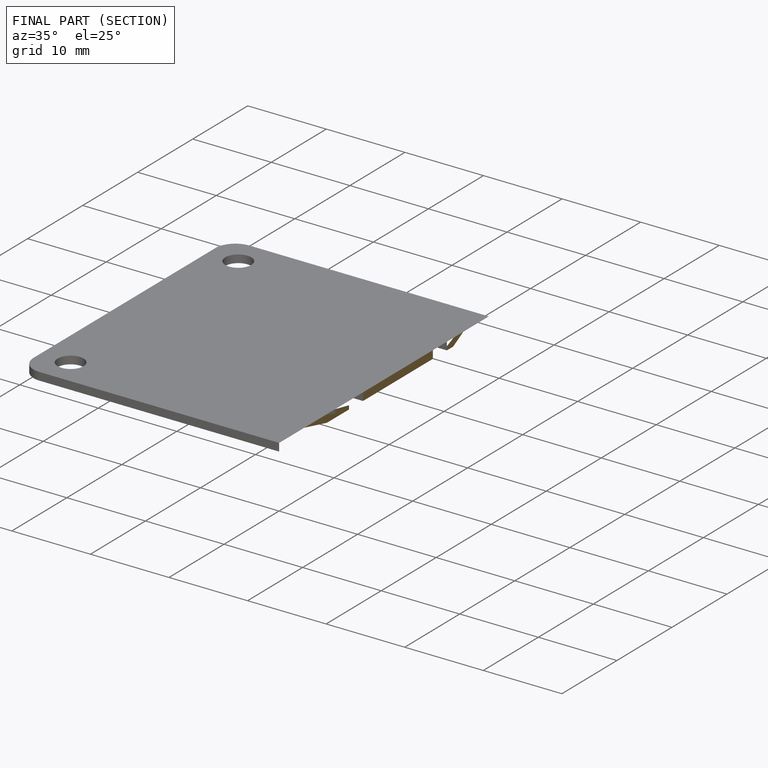
[diagram: finished part — half-section view (interior)]
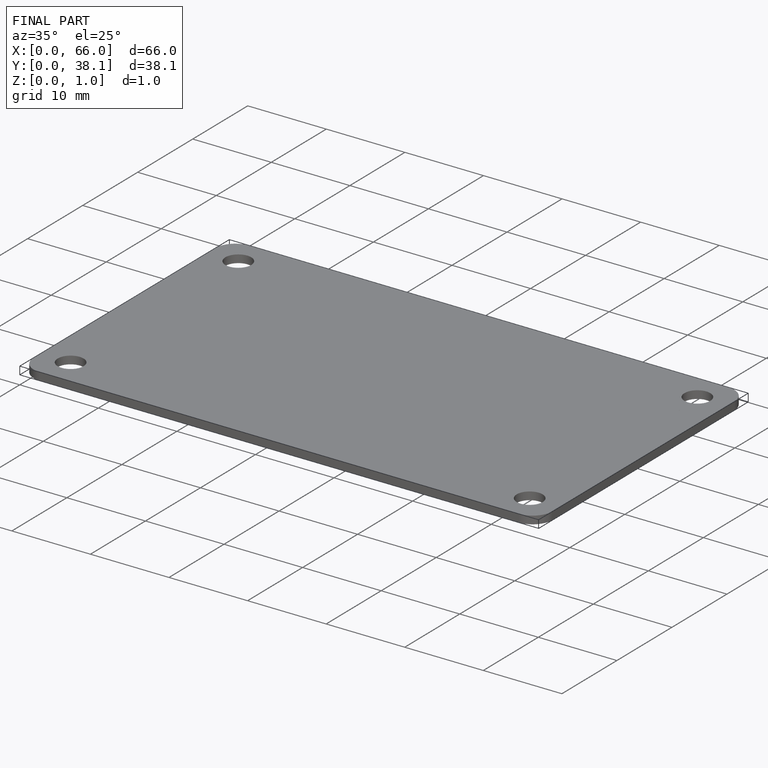
[diagram: finished part — iso view with bounding-box wireframe]
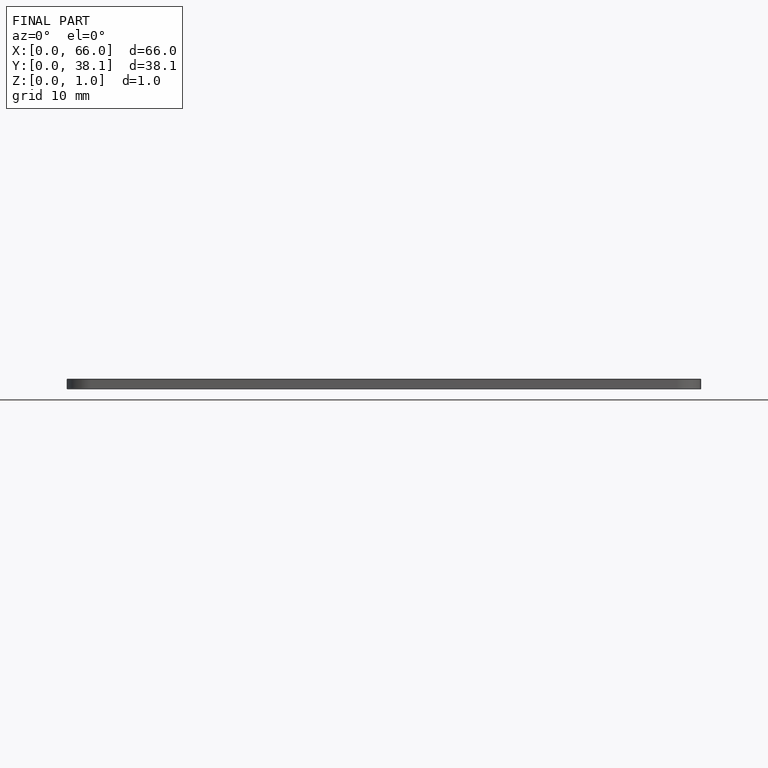
[diagram: finished part — front view with bounding-box wireframe]
